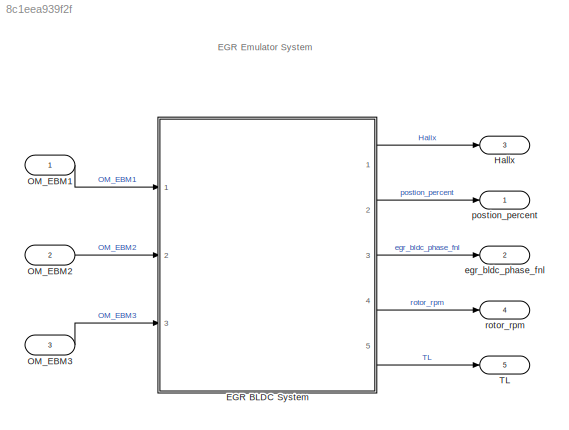
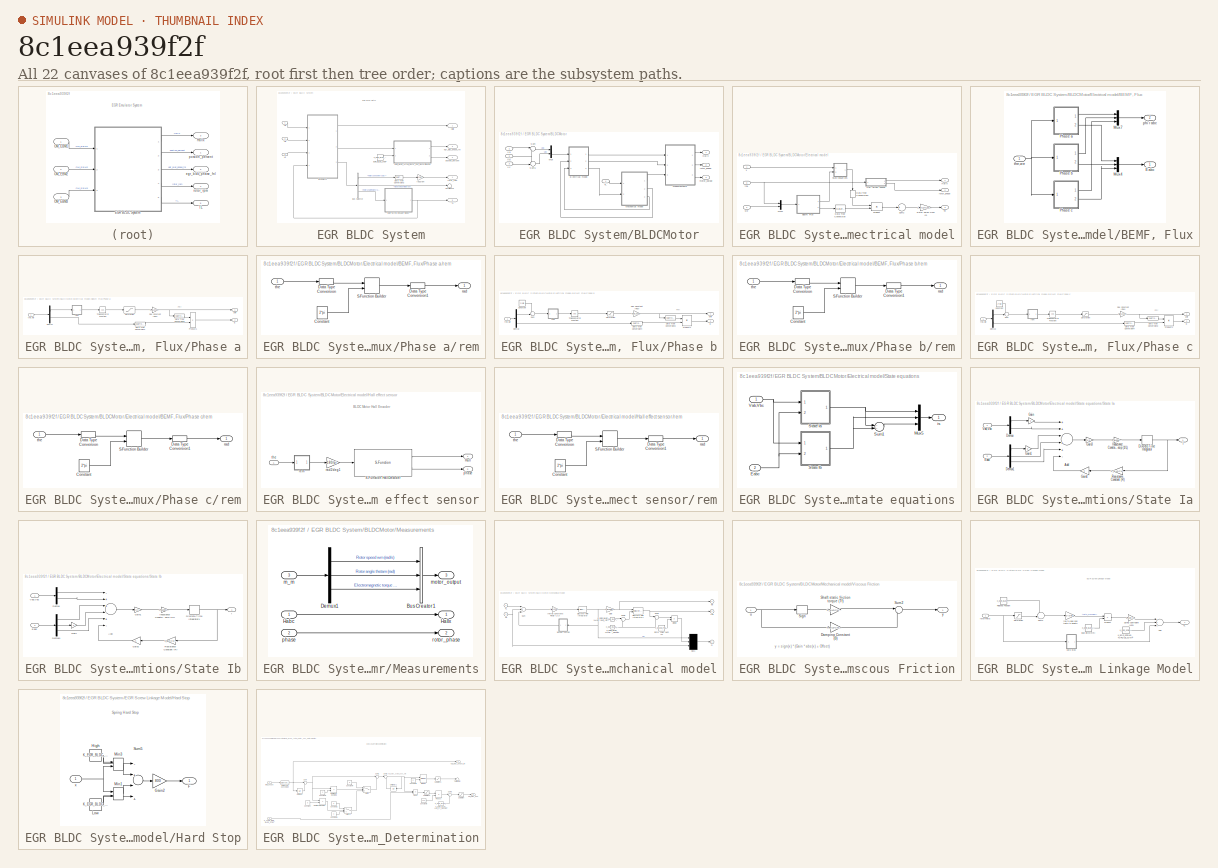
[diagram: thumbnail index - all 22 canvases of the model, root first then tree order]
MODEL slx_8c1eea939f2f
KIND model
BLOCK [SubSystem] EGR BLDC System
  FunctionWithSeparateData = off
  MaskHideContents = off
  MinAlgLoopOccurrences = off
  MinMaxOverflowLogging = MinMaxAndOverflow
  Opaque = off
  Ports = [3, 5]
  PropExecContextOutsideSubsystem = off
  RTWSystemCode = Auto
  RequestExecContextInheritance = off
BLOCK [SubSystem] EGR BLDC System/BLDCMotor
  FunctionWithSeparateData = off
  MaskHideContents = off
  MinAlgLoopOccurrences = off
  Opaque = off
  Ports = [4, 3]
  PropExecContextOutsideSubsystem = off
  RTWSystemCode = Auto
  RequestExecContextInheritance = off
BLOCK [SubSystem] EGR BLDC System/BLDCMotor/Electrical model
  FunctionWithSeparateData = off
  MaskHideContents = off
  MinAlgLoopOccurrences = off
  Opaque = off
  Ports = [3, 3]
  PropExecContextOutsideSubsystem = off
  RTWSystemCode = Auto
  RequestExecContextInheritance = off
BLOCK [SubSystem] EGR BLDC System/BLDCMotor/Electrical model/BEMF, Flux
  FunctionWithSeparateData = off
  MaskHideContents = off
  MinAlgLoopOccurrences = off
  Opaque = off
  Ports = [1, 2]
  PropExecContextOutsideSubsystem = off
  RTWSystemCode = Auto
  RequestExecContextInheritance = off
BLOCK [Outport] EGR BLDC System/BLDCMotor/Electrical model/BEMF, Flux/E abc
  IconDisplay = Port number
  OutDataTypeStr = fixdt(1,32,10)
BLOCK [Mux] EGR BLDC System/BLDCMotor/Electrical model/BEMF, Flux/Mux4
  DisplayOption = bar
  Inputs = 3
  Ports = [3, 1]
BLOCK [Mux] EGR BLDC System/BLDCMotor/Electrical model/BEMF, Flux/Mux7
  DisplayOption = bar
  Inputs = 3
  Ports = [3, 1]
BLOCK [SubSystem] EGR BLDC System/BLDCMotor/Electrical model/BEMF, Flux/Phase a
  FunctionWithSeparateData = off
  MaskHideContents = off
  MinAlgLoopOccurrences = off
  Opaque = off
  Ports = [1, 2]
  PropExecContextOutsideSubsystem = off
  RTWSystemCode = Auto
  RequestExecContextInheritance = off
BLOCK [DataTypeConversion] EGR BLDC System/BLDCMotor/Electrical model/BEMF, Flux/Phase a/Data Type Conversion4
  OutDataTypeStr = fixdt(1,32,8)
  OutMax = 1000
  OutMin = -1000
  RndMeth = Floor
  SaturateOnIntegerOverflow = off
BLOCK [DataTypeConversion] EGR BLDC System/BLDCMotor/Electrical model/BEMF, Flux/Phase a/Data Type Conversion5
  OutDataTypeStr = fixdt(1,32,8)
  OutMax = 10
  OutMin = -10
  RndMeth = Floor
  SaturateOnIntegerOverflow = off
BLOCK [Demux] EGR BLDC System/BLDCMotor/Electrical model/BEMF, Flux/Phase a/Demux
  Outputs = 2
  Ports = [1, 2]
BLOCK [Outport] EGR BLDC System/BLDCMotor/Electrical model/BEMF, Flux/Phase a/E
  IconDisplay = Port number
  OutDataTypeStr = fixdt(1,32,10)
  Port = 2
BLOCK [Gain] EGR BLDC System/BLDCMotor/Electrical model/BEMF, Flux/Phase a/Flux Constant (Flux)
  Gain = K_BLDCM_FLUX
  OutDataTypeStr = fixdt(1,32,10)
  ParamDataTypeStr = fixdt(1,32,10)
  SaturateOnIntegerOverflow = off
BLOCK [Product] EGR BLDC System/BLDCMotor/Electrical model/BEMF, Flux/Phase a/Product1
  InputSameDT = off
  OutDataTypeStr = fixdt(1,32,10)
  Ports = [2, 1]
  RndMeth = Floor
  SaturateOnIntegerOverflow = off
BLOCK [Saturate] EGR BLDC System/BLDCMotor/Electrical model/BEMF, Flux/Phase a/Saturation
  InputPortMap = u0
  OutDataTypeStr = fixdt(1,32,10)
  OutMax = 1
  OutMin = -1
  Ports = [1, 1]
BLOCK [Trigonometry] EGR BLDC System/BLDCMotor/Electrical model/BEMF, Flux/Phase a/Trigonometric Function
  ApproximationMethod = CORDIC
  Operator = cos
  Ports = [1, 1]
BLOCK [Outport] EGR BLDC System/BLDCMotor/Electrical model/BEMF, Flux/Phase a/phi'r
  IconDisplay = Port number
  OutDataTypeStr = fixdt(1,32,10)
BLOCK [SubSystem] EGR BLDC System/BLDCMotor/Electrical model/BEMF, Flux/Phase a/rem
  FunctionWithSeparateData = off
  MaskHideContents = off
  MinAlgLoopOccurrences = off
  Opaque = off
  Ports = [1, 1]
  PropExecContextOutsideSubsystem = off
  RTWSystemCode = Auto
  RequestExecContextInheritance = off
  TreatAsAtomicUnit = on
BLOCK [Constant] EGR BLDC System/BLDCMotor/Electrical model/BEMF, Flux/Phase a/rem/Constant
  OutDataTypeStr = double
  Value = 2*pi
BLOCK [DataTypeConversion] EGR BLDC System/BLDCMotor/Electrical model/BEMF, Flux/Phase a/rem/Data Type Conversion
  OutDataTypeStr = double
  RndMeth = Floor
  SaturateOnIntegerOverflow = off
BLOCK [DataTypeConversion] EGR BLDC System/BLDCMotor/Electrical model/BEMF, Flux/Phase a/rem/Data Type Conversion1
  OutDataTypeStr = fixdt(1,32,10)
  OutMax = 2*pi
  OutMin = -2*pi
  RndMeth = Simplest
  SaturateOnIntegerOverflow = off
BLOCK [S-Function] EGR BLDC System/BLDCMotor/Electrical model/BEMF, Flux/Phase a/rem/S-Function Builder
  CopyFcn = set_param(gcbh,'LinkStatus','none')
  EnableBusSupport = off
  FunctionName = remf
  InitFcn = try, set_param(gcb,'FunctionName','remf'), end
  OpenFcn = sfunctionwizard(gcbh)
  Ports = [2, 1]
  PreSaveFcn = try, set_param(gcb,'FunctionName','remf'), end
  SFunctionModules = remf_wrapper
BLOCK [Outport] EGR BLDC System/BLDCMotor/Electrical model/BEMF, Flux/Phase a/rem/rad
  IconDisplay = Port number
BLOCK [Inport] EGR BLDC System/BLDCMotor/Electrical model/BEMF, Flux/Phase a/rem/the
  IconDisplay = Port number
BLOCK [Inport] EGR BLDC System/BLDCMotor/Electrical model/BEMF, Flux/Phase a/the,we
  IconDisplay = Port number
BLOCK [SubSystem] EGR BLDC System/BLDCMotor/Electrical model/BEMF, Flux/Phase b
  FunctionWithSeparateData = off
  MaskHideContents = off
  MinAlgLoopOccurrences = off
  Opaque = off
  Ports = [1, 2]
  PropExecContextOutsideSubsystem = off
  RTWSystemCode = Auto
  RequestExecContextInheritance = off
BLOCK [Constant] EGR BLDC System/BLDCMotor/Electrical model/BEMF, Flux/Phase b/Constant
  OutDataTypeStr = fixdt(1,32,29)
  Value = 2*pi/3
BLOCK [DataTypeConversion] EGR BLDC System/BLDCMotor/Electrical model/BEMF, Flux/Phase b/Data Type Conversion3
  OutDataTypeStr = fixdt(1,32,8)
  OutMax = 10
  OutMin = -10
  RndMeth = Floor
  SaturateOnIntegerOverflow = off
BLOCK [DataTypeConversion] EGR BLDC System/BLDCMotor/Electrical model/BEMF, Flux/Phase b/Data Type Conversion4
  OutDataTypeStr = fixdt(1,32,8)
  OutMax = 1000
  OutMin = -1000
  RndMeth = Floor
  SaturateOnIntegerOverflow = off
BLOCK [Demux] EGR BLDC System/BLDCMotor/Electrical model/BEMF, Flux/Phase b/Demux
  Outputs = 2
  Ports = [1, 2]
BLOCK [Outport] EGR BLDC System/BLDCMotor/Electrical model/BEMF, Flux/Phase b/E
  IconDisplay = Port number
  OutDataTypeStr = fixdt(1,32,10)
  Port = 2
BLOCK [Gain] EGR BLDC System/BLDCMotor/Electrical model/BEMF, Flux/Phase b/Flux Constant (Flux)
  Gain = K_BLDCM_FLUX
  OutDataTypeStr = fixdt(1,32,10)
  ParamDataTypeStr = fixdt(1,32,10)
  SaturateOnIntegerOverflow = off
BLOCK [Product] EGR BLDC System/BLDCMotor/Electrical model/BEMF, Flux/Phase b/Product1
  InputSameDT = off
  OutDataTypeStr = fixdt(1,32,10)
  Ports = [2, 1]
  RndMeth = Floor
  SaturateOnIntegerOverflow = off
BLOCK [Saturate] EGR BLDC System/BLDCMotor/Electrical model/BEMF, Flux/Phase b/Saturation
  InputPortMap = u0
  OutDataTypeStr = fixdt(1,32,10)
  OutMax = 1
  OutMin = -1
  Ports = [1, 1]
BLOCK [Sum] EGR BLDC System/BLDCMotor/Electrical model/BEMF, Flux/Phase b/Sum
  IconShape = round
  InputSameDT = off
  Inputs = -+|
  OutDataTypeStr = fixdt(1,32,10)
  Ports = [2, 1]
  SaturateOnIntegerOverflow = off
BLOCK [Trigonometry] EGR BLDC System/BLDCMotor/Electrical model/BEMF, Flux/Phase b/Trigonometric Function
  ApproximationMethod = CORDIC
  Operator = cos
  Ports = [1, 1]
BLOCK [Outport] EGR BLDC System/BLDCMotor/Electrical model/BEMF, Flux/Phase b/phi'r
  IconDisplay = Port number
  OutDataTypeStr = fixdt(1,32,10)
BLOCK [SubSystem] EGR BLDC System/BLDCMotor/Electrical model/BEMF, Flux/Phase b/rem
  FunctionWithSeparateData = off
  MaskHideContents = off
  MinAlgLoopOccurrences = off
  Opaque = off
  Ports = [1, 1]
  PropExecContextOutsideSubsystem = off
  RTWSystemCode = Auto
  RequestExecContextInheritance = off
  TreatAsAtomicUnit = on
BLOCK [Constant] EGR BLDC System/BLDCMotor/Electrical model/BEMF, Flux/Phase b/rem/Constant
  OutDataTypeStr = double
  Value = 2*pi
BLOCK [DataTypeConversion] EGR BLDC System/BLDCMotor/Electrical model/BEMF, Flux/Phase b/rem/Data Type Conversion
  OutDataTypeStr = double
  RndMeth = Floor
  SaturateOnIntegerOverflow = off
BLOCK [DataTypeConversion] EGR BLDC System/BLDCMotor/Electrical model/BEMF, Flux/Phase b/rem/Data Type Conversion1
  OutDataTypeStr = fixdt(1,32,10)
  OutMax = 2*pi
  OutMin = -2*pi
  RndMeth = Simplest
  SaturateOnIntegerOverflow = off
BLOCK [S-Function] EGR BLDC System/BLDCMotor/Electrical model/BEMF, Flux/Phase b/rem/S-Function Builder
  CopyFcn = set_param(gcbh,'LinkStatus','none')
  EnableBusSupport = off
  FunctionName = remf
  InitFcn = try, set_param(gcb,'FunctionName','remf'), end
  OpenFcn = sfunctionwizard(gcbh)
  Ports = [2, 1]
  PreSaveFcn = try, set_param(gcb,'FunctionName','remf'), end
  SFunctionModules = remf_wrapper
BLOCK [Outport] EGR BLDC System/BLDCMotor/Electrical model/BEMF, Flux/Phase b/rem/rad
  IconDisplay = Port number
BLOCK [Inport] EGR BLDC System/BLDCMotor/Electrical model/BEMF, Flux/Phase b/rem/the
  IconDisplay = Port number
BLOCK [Inport] EGR BLDC System/BLDCMotor/Electrical model/BEMF, Flux/Phase b/the,we
  IconDisplay = Port number
BLOCK [SubSystem] EGR BLDC System/BLDCMotor/Electrical model/BEMF, Flux/Phase c
  FunctionWithSeparateData = off
  MaskHideContents = off
  MinAlgLoopOccurrences = off
  Opaque = off
  Ports = [1, 2]
  PropExecContextOutsideSubsystem = off
  RTWSystemCode = Auto
  RequestExecContextInheritance = off
BLOCK [Constant] EGR BLDC System/BLDCMotor/Electrical model/BEMF, Flux/Phase c/Constant
  OutDataTypeStr = fixdt(1,32,29)
  Value = 2*pi/3
BLOCK [DataTypeConversion] EGR BLDC System/BLDCMotor/Electrical model/BEMF, Flux/Phase c/Data Type Conversion3
  OutDataTypeStr = fixdt(1,32,8)
  OutMax = 10
  OutMin = -10
  RndMeth = Floor
  SaturateOnIntegerOverflow = off
BLOCK [DataTypeConversion] EGR BLDC System/BLDCMotor/Electrical model/BEMF, Flux/Phase c/Data Type Conversion4
  OutDataTypeStr = fixdt(1,32,8)
  OutMax = 1000
  OutMin = -1000
  RndMeth = Floor
  SaturateOnIntegerOverflow = off
BLOCK [Demux] EGR BLDC System/BLDCMotor/Electrical model/BEMF, Flux/Phase c/Demux
  Outputs = 2
  Ports = [1, 2]
BLOCK [Outport] EGR BLDC System/BLDCMotor/Electrical model/BEMF, Flux/Phase c/E
  IconDisplay = Port number
  OutDataTypeStr = fixdt(1,32,10)
  Port = 2
BLOCK [Gain] EGR BLDC System/BLDCMotor/Electrical model/BEMF, Flux/Phase c/Flux Constant (Flux)
  Gain = K_BLDCM_FLUX
  OutDataTypeStr = fixdt(1,32,10)
  ParamDataTypeStr = fixdt(1,32,10)
  SaturateOnIntegerOverflow = off
BLOCK [Product] EGR BLDC System/BLDCMotor/Electrical model/BEMF, Flux/Phase c/Product1
  InputSameDT = off
  OutDataTypeStr = fixdt(1,32,10)
  Ports = [2, 1]
  RndMeth = Floor
  SaturateOnIntegerOverflow = off
BLOCK [Saturate] EGR BLDC System/BLDCMotor/Electrical model/BEMF, Flux/Phase c/Saturation
  InputPortMap = u0
  OutDataTypeStr = fixdt(1,32,10)
  OutMax = 1
  OutMin = -1
  Ports = [1, 1]
BLOCK [Sum] EGR BLDC System/BLDCMotor/Electrical model/BEMF, Flux/Phase c/Sum
  IconShape = round
  InputSameDT = off
  Inputs = ++|
  OutDataTypeStr = fixdt(1,32,10)
  Ports = [2, 1]
  SaturateOnIntegerOverflow = off
BLOCK [Trigonometry] EGR BLDC System/BLDCMotor/Electrical model/BEMF, Flux/Phase c/Trigonometric Function
  ApproximationMethod = CORDIC
  Operator = cos
  Ports = [1, 1]
BLOCK [Outport] EGR BLDC System/BLDCMotor/Electrical model/BEMF, Flux/Phase c/phi'r
  IconDisplay = Port number
  OutDataTypeStr = fixdt(1,32,10)
BLOCK [SubSystem] EGR BLDC System/BLDCMotor/Electrical model/BEMF, Flux/Phase c/rem
  FunctionWithSeparateData = off
  MaskHideContents = off
  MinAlgLoopOccurrences = off
  Opaque = off
  Ports = [1, 1]
  PropExecContextOutsideSubsystem = off
  RTWSystemCode = Auto
  RequestExecContextInheritance = off
  TreatAsAtomicUnit = on
BLOCK [Constant] EGR BLDC System/BLDCMotor/Electrical model/BEMF, Flux/Phase c/rem/Constant
  OutDataTypeStr = double
  Value = 2*pi
BLOCK [DataTypeConversion] EGR BLDC System/BLDCMotor/Electrical model/BEMF, Flux/Phase c/rem/Data Type Conversion
  OutDataTypeStr = double
  RndMeth = Floor
  SaturateOnIntegerOverflow = off
BLOCK [DataTypeConversion] EGR BLDC System/BLDCMotor/Electrical model/BEMF, Flux/Phase c/rem/Data Type Conversion1
  OutDataTypeStr = fixdt(1,32,10)
  OutMax = 2*pi
  OutMin = -2*pi
  RndMeth = Simplest
  SaturateOnIntegerOverflow = off
BLOCK [S-Function] EGR BLDC System/BLDCMotor/Electrical model/BEMF, Flux/Phase c/rem/S-Function Builder
  CopyFcn = set_param(gcbh,'LinkStatus','none')
  EnableBusSupport = off
  FunctionName = remf
  InitFcn = try, set_param(gcb,'FunctionName','remf'), end
  OpenFcn = sfunctionwizard(gcbh)
  Ports = [2, 1]
  PreSaveFcn = try, set_param(gcb,'FunctionName','remf'), end
  SFunctionModules = remf_wrapper
BLOCK [Outport] EGR BLDC System/BLDCMotor/Electrical model/BEMF, Flux/Phase c/rem/rad
  IconDisplay = Port number
BLOCK [Inport] EGR BLDC System/BLDCMotor/Electrical model/BEMF, Flux/Phase c/rem/the
  IconDisplay = Port number
BLOCK [Inport] EGR BLDC System/BLDCMotor/Electrical model/BEMF, Flux/Phase c/the,we
  IconDisplay = Port number
BLOCK [Outport] EGR BLDC System/BLDCMotor/Electrical model/BEMF, Flux/phi'r abc
  IconDisplay = Port number
  OutDataTypeStr = fixdt(1,32,10)
  Port = 2
BLOCK [Inport] EGR BLDC System/BLDCMotor/Electrical model/BEMF, Flux/the,we
  IconDisplay = Port number
BLOCK [DataTypeConversion] EGR BLDC System/BLDCMotor/Electrical model/Data Type Conversion
  OutDataTypeStr = fixdt(1,32,5)
  RndMeth = Simplest
  SaturateOnIntegerOverflow = off
BLOCK [DataTypeConversion] EGR BLDC System/BLDCMotor/Electrical model/Data Type Conversion1
  OutDataTypeStr = fixdt(1,32,5)
  RndMeth = Simplest
  SaturateOnIntegerOverflow = off
BLOCK [SubSystem] EGR BLDC System/BLDCMotor/Electrical model/Hall effect sensor
  FunctionWithSeparateData = off
  MaskHideContents = off
  MinAlgLoopOccurrences = off
  Opaque = off
  Ports = [1, 2]
  PropExecContextOutsideSubsystem = off
  RTWSystemCode = Auto
  RequestExecContextInheritance = off
BLOCK [Outport] EGR BLDC System/BLDCMotor/Electrical model/Hall effect sensor/Hall
  IconDisplay = Port number
  OutDataTypeStr = boolean
BLOCK [S-Function] EGR BLDC System/BLDCMotor/Electrical model/Hall effect sensor/S-Function HallDecoder
  CopyFcn = set_param(gcbh,'LinkStatus','none')
  EnableBusSupport = off
  FunctionName = HallEncoder
  InitFcn = try, set_param(gcb,'FunctionName','HallEncoder'), end
  OpenFcn = sfunctionwizard(gcbh)
  Ports = [1, 2]
  PreSaveFcn = try, set_param(gcb,'FunctionName','HallEncoder'), end
  SFunctionModules = HallEncoder_wrapper
BLOCK [Outport] EGR BLDC System/BLDCMotor/Electrical model/Hall effect sensor/phase
  IconDisplay = Port number
  OutDataTypeStr = int8
  Port = 2
BLOCK [Gain] EGR BLDC System/BLDCMotor/Electrical model/Hall effect sensor/rad2deg1
  Gain = 180/pi
  OutDataTypeStr = double
  OutMax = 360
  OutMin = -360
  ParamDataTypeStr = Inherit: Inherit via internal rule
  RndMeth = Simplest
  SaturateOnIntegerOverflow = off
BLOCK [SubSystem] EGR BLDC System/BLDCMotor/Electrical model/Hall effect sensor/rem
  FunctionWithSeparateData = off
  MaskHideContents = off
  MinAlgLoopOccurrences = off
  Opaque = off
  Ports = [1, 1]
  PropExecContextOutsideSubsystem = off
  RTWSystemCode = Auto
  RequestExecContextInheritance = off
  TreatAsAtomicUnit = on
BLOCK [Constant] EGR BLDC System/BLDCMotor/Electrical model/Hall effect sensor/rem/Constant
  OutDataTypeStr = double
  Value = 2*pi
BLOCK [DataTypeConversion] EGR BLDC System/BLDCMotor/Electrical model/Hall effect sensor/rem/Data Type Conversion
  OutDataTypeStr = double
  RndMeth = Floor
  SaturateOnIntegerOverflow = off
BLOCK [DataTypeConversion] EGR BLDC System/BLDCMotor/Electrical model/Hall effect sensor/rem/Data Type Conversion1
  OutDataTypeStr = fixdt(1,32,10)
  OutMax = 2*pi
  OutMin = -2*pi
  RndMeth = Simplest
  SaturateOnIntegerOverflow = off
BLOCK [S-Function] EGR BLDC System/BLDCMotor/Electrical model/Hall effect sensor/rem/S-Function Builder
  CopyFcn = set_param(gcbh,'LinkStatus','none')
  EnableBusSupport = off
  FunctionName = remf
  InitFcn = try, set_param(gcb,'FunctionName','remf'), end
  OpenFcn = sfunctionwizard(gcbh)
  Ports = [2, 1]
  PreSaveFcn = try, set_param(gcb,'FunctionName','remf'), end
  SFunctionModules = remf_wrapper
BLOCK [Outport] EGR BLDC System/BLDCMotor/Electrical model/Hall effect sensor/rem/rad
  IconDisplay = Port number
BLOCK [Inport] EGR BLDC System/BLDCMotor/Electrical model/Hall effect sensor/rem/the
  IconDisplay = Port number
BLOCK [Inport] EGR BLDC System/BLDCMotor/Electrical model/Hall effect sensor/the
  IconDisplay = Port number
BLOCK [Outport] EGR BLDC System/BLDCMotor/Electrical model/Hallx
  IconDisplay = Port number
  InitialOutput = 0
  OutDataTypeStr = boolean
BLOCK [Mux] EGR BLDC System/BLDCMotor/Electrical model/Mux1
  DisplayOption = bar
  Inputs = 2
  Ports = [2, 1]
BLOCK [Product] EGR BLDC System/BLDCMotor/Electrical model/Product
  InputSameDT = off
  OutDataTypeStr = fixdt(1,32,10)
  Ports = [2, 1]
  RndMeth = Floor
  SaturateOnIntegerOverflow = off
BLOCK [Gain] EGR BLDC System/BLDCMotor/Electrical model/Rotor Poles Num (p)
  Gain = C_BLDCM_POLE_NUM
  OutDataTypeStr = fixdt(1,32,10)
  ParamDataTypeStr = int8
  SaturateOnIntegerOverflow = off
BLOCK [SubSystem] EGR BLDC System/BLDCMotor/Electrical model/State equations
  FunctionWithSeparateData = off
  MaskHideContents = off
  MinAlgLoopOccurrences = off
  Opaque = off
  Ports = [2, 1]
  PropExecContextOutsideSubsystem = off
  RTWSystemCode = Auto
  RequestExecContextInheritance = off
BLOCK [Inport] EGR BLDC System/BLDCMotor/Electrical model/State equations/Eabc
  IconDisplay = Port number
  OutDataTypeStr = fixdt(1,32,10)
  Port = 2
BLOCK [Mux] EGR BLDC System/BLDCMotor/Electrical model/State equations/Mux5
  DisplayOption = bar
  Inputs = 3
  Ports = [3, 1]
BLOCK [SubSystem] EGR BLDC System/BLDCMotor/Electrical model/State equations/State Ia
  FunctionWithSeparateData = off
  MaskHideContents = off
  MinAlgLoopOccurrences = off
  Opaque = off
  Ports = [2, 1]
  PropExecContextOutsideSubsystem = off
  RTWSystemCode = Auto
  RequestExecContextInheritance = off
BLOCK [Sum] EGR BLDC System/BLDCMotor/Electrical model/State equations/State Ia/Add
  InputSameDT = off
  Inputs = ++-++-
  OutDataTypeStr = fixdt(1,32,10)
  Ports = [6, 1]
  SaturateOnIntegerOverflow = off
BLOCK [Demux] EGR BLDC System/BLDCMotor/Electrical model/State equations/State Ia/Demux
  DisplayOption = bar
  Outputs = 2
  Ports = [1, 2]
BLOCK [Demux] EGR BLDC System/BLDCMotor/Electrical model/State equations/State Ia/Demux1
  DisplayOption = bar
  Outputs = 3
  Ports = [1, 3]
BLOCK [DiscreteIntegrator] EGR BLDC System/BLDCMotor/Electrical model/State equations/State Ia/Discrete-Time Integrator
  ICPrevOutput = DiscIntNeverNeededParam
  ICPrevScaledInput = DiscIntNeverNeededParam
  OutDataTypeStr = fixdt(1,32,10)
  Ports = [1, 1]
  SampleTime = Ts
BLOCK [Inport] EGR BLDC System/BLDCMotor/Electrical model/State equations/State Ia/Eabc
  IconDisplay = Port number
  OutDataTypeStr = fixdt(1,32,10)
  Port = 2
BLOCK [Gain] EGR BLDC System/BLDCMotor/Electrical model/State equations/State Ia/Gain
  Gain = 2
  OutDataTypeStr = fixdt(1,32,10)
  ParamDataTypeStr = Inherit: Inherit via internal rule
  SaturateOnIntegerOverflow = off
BLOCK [Gain] EGR BLDC System/BLDCMotor/Electrical model/State equations/State Ia/Gain1
  Gain = 2
  OutDataTypeStr = fixdt(1,32,10)
  ParamDataTypeStr = Inherit: Inherit via internal rule
  SaturateOnIntegerOverflow = off
BLOCK [Gain] EGR BLDC System/BLDCMotor/Electrical model/State equations/State Ia/Gain3
  Gain = 1/3
  OutDataTypeStr = fixdt(1,32,10)
  ParamDataTypeStr = fixdt(1,32,10)
  SaturateOnIntegerOverflow = off
BLOCK [Gain] EGR BLDC System/BLDCMotor/Electrical model/State equations/State Ia/Gain4
  Gain = 3
  OutDataTypeStr = fixdt(1,32,10)
  SaturateOnIntegerOverflow = off
BLOCK [Gain] EGR BLDC System/BLDCMotor/Electrical model/State equations/State Ia/Inductance Constant's Recip (1//L)
  Gain = K_BLDCM_INDUCTANCE
  OutDataTypeStr = fixdt(1,32,10)
  ParamDataTypeStr = fixdt(1,32,10)
  SaturateOnIntegerOverflow = off
BLOCK [Gain] EGR BLDC System/BLDCMotor/Electrical model/State equations/State Ia/Resistance Constant (R)
  Gain = K_BLDCM_RESISTANCE
  OutDataTypeStr = fixdt(1,32,10)
  ParamDataTypeStr = fixdt(1,32,10)
  SaturateOnIntegerOverflow = off
BLOCK [Inport] EGR BLDC System/BLDCMotor/Electrical model/State equations/State Ia/Vab,Vbc
  IconDisplay = Port number
  OutDataTypeStr = fixdt(1,32,10)
BLOCK [Outport] EGR BLDC System/BLDCMotor/Electrical model/State equations/State Ia/i
  IconDisplay = Port number
  OutDataTypeStr = fixdt(1,32,10)
BLOCK [SubSystem] EGR BLDC System/BLDCMotor/Electrical model/State equations/State Ib
  FunctionWithSeparateData = off
  MaskHideContents = off
  MinAlgLoopOccurrences = off
  Opaque = off
  Ports = [2, 1]
  PropExecContextOutsideSubsystem = off
  RTWSystemCode = Auto
  RequestExecContextInheritance = off
BLOCK [Sum] EGR BLDC System/BLDCMotor/Electrical model/State equations/State Ib/Add
  InputSameDT = off
  Inputs = -++-+-
  OutDataTypeStr = fixdt(1,32,10)
  Ports = [6, 1]
  SaturateOnIntegerOverflow = off
BLOCK [Demux] EGR BLDC System/BLDCMotor/Electrical model/State equations/State Ib/Demux
  DisplayOption = bar
  Outputs = 2
  Ports = [1, 2]
BLOCK [Demux] EGR BLDC System/BLDCMotor/Electrical model/State equations/State Ib/Demux1
  DisplayOption = bar
  Outputs = 3
  Ports = [1, 3]
BLOCK [DiscreteIntegrator] EGR BLDC System/BLDCMotor/Electrical model/State equations/State Ib/Discrete-Time Integrator1
  ICPrevOutput = DiscIntNeverNeededParam
  ICPrevScaledInput = DiscIntNeverNeededParam
  OutDataTypeStr = fixdt(1,32,10)
  Ports = [1, 1]
  SampleTime = Ts
BLOCK [Inport] EGR BLDC System/BLDCMotor/Electrical model/State equations/State Ib/Eabc
  IconDisplay = Port number
  OutDataTypeStr = fixdt(1,32,10)
  Port = 2
BLOCK [Gain] EGR BLDC System/BLDCMotor/Electrical model/State equations/State Ib/Gain
  Gain = 2
  OutDataTypeStr = fixdt(1,32,10)
  ParamDataTypeStr = Inherit: Inherit via internal rule
  SaturateOnIntegerOverflow = off
BLOCK [Gain] EGR BLDC System/BLDCMotor/Electrical model/State equations/State Ib/Gain1
  Gain = 1/3
  OutDataTypeStr = fixdt(1,32,10)
  ParamDataTypeStr = fixdt(1,32,10)
  SaturateOnIntegerOverflow = off
BLOCK [Gain] EGR BLDC System/BLDCMotor/Electrical model/State equations/State Ib/Gain2
  Gain = 3
  OutDataTypeStr = fixdt(1,32,10)
  ParamDataTypeStr = int8
  SaturateOnIntegerOverflow = off
BLOCK [Gain] EGR BLDC System/BLDCMotor/Electrical model/State equations/State Ib/Inductance Constant's Recip (1//L)
  Gain = K_BLDCM_INDUCTANCE
  OutDataTypeStr = fixdt(1,32,10)
  ParamDataTypeStr = fixdt(1,32,10)
  SaturateOnIntegerOverflow = off
BLOCK [Gain] EGR BLDC System/BLDCMotor/Electrical model/State equations/State Ib/Resistance Constant (R)
  Gain = K_BLDCM_RESISTANCE
  OutDataTypeStr = fixdt(1,32,10)
  ParamDataTypeStr = fixdt(1,32,10)
  SaturateOnIntegerOverflow = off
BLOCK [Inport] EGR BLDC System/BLDCMotor/Electrical model/State equations/State Ib/Vab,Vbc
  IconDisplay = Port number
BLOCK [Outport] EGR BLDC System/BLDCMotor/Electrical model/State equations/State Ib/i
  IconDisplay = Port number
  OutDataTypeStr = fixdt(1,32,10)
BLOCK [Sum] EGR BLDC System/BLDCMotor/Electrical model/State equations/Sum1
  InputSameDT = off
  Inputs = --
  OutDataTypeStr = fixdt(1,32,10)
  Ports = [2, 1]
BLOCK [Inport] EGR BLDC System/BLDCMotor/Electrical model/State equations/Vab,Vbc
  IconDisplay = Port number
BLOCK [Outport] EGR BLDC System/BLDCMotor/Electrical model/State equations/is
  IconDisplay = Port number
  OutDataTypeStr = fixdt(1,32,10)
BLOCK [Sum] EGR BLDC System/BLDCMotor/Electrical model/Sum2
  IconShape = round
  InputSameDT = off
  Inputs = +
  OutDataTypeStr = fixdt(1,32,10)
  Ports = [1, 1]
BLOCK [Outport] EGR BLDC System/BLDCMotor/Electrical model/Te
  IconDisplay = Port number
  InitialOutput = 0
  OutDataTypeStr = fixdt(1,32,10)
  Port = 3
BLOCK [Outport] EGR BLDC System/BLDCMotor/Electrical model/rotor_phase
  IconDisplay = Port number
  InitialOutput = 0
  Port = 2
BLOCK [Inport] EGR BLDC System/BLDCMotor/Electrical model/the
  IconDisplay = Port number
  Port = 3
BLOCK [Inport] EGR BLDC System/BLDCMotor/Electrical model/v
  IconDisplay = Port number
BLOCK [Inport] EGR BLDC System/BLDCMotor/Electrical model/we
  IconDisplay = Port number
  Port = 2
BLOCK [Outport] EGR BLDC System/BLDCMotor/Hallx
  IconDisplay = Port number
BLOCK [SubSystem] EGR BLDC System/BLDCMotor/Measurements
  FunctionWithSeparateData = off
  MaskHideContents = off
  MinAlgLoopOccurrences = off
  Opaque = off
  Ports = [3, 3]
  PropExecContextOutsideSubsystem = off
  RTWSystemCode = Auto
  RequestExecContextInheritance = off
BLOCK [BusCreator] EGR BLDC System/BLDCMotor/Measurements/Bus Creator1
  DisplayOption = bar
  Inputs = 3
  Ports = [3, 1]
BLOCK [Demux] EGR BLDC System/BLDCMotor/Measurements/Demux1
  DisplayOption = bar
  Outputs = [1,1,1]
  Ports = [1, 3]
BLOCK [Inport] EGR BLDC System/BLDCMotor/Measurements/Habc
  IconDisplay = Port number
  OutDataTypeStr = boolean
BLOCK [Outport] EGR BLDC System/BLDCMotor/Measurements/Hallx
  IconDisplay = Port number
BLOCK [Inport] EGR BLDC System/BLDCMotor/Measurements/m_m
  IconDisplay = Port number
  OutDataTypeStr = fixdt(1,32,10)
  Port = 3
BLOCK [Outport] EGR BLDC System/BLDCMotor/Measurements/motor_output
  IconDisplay = Port number
  Port = 3
BLOCK [Inport] EGR BLDC System/BLDCMotor/Measurements/phase
  IconDisplay = Port number
  OutDataTypeStr = int8
  Port = 2
BLOCK [Outport] EGR BLDC System/BLDCMotor/Measurements/rotor_phase
  IconDisplay = Port number
  Port = 2
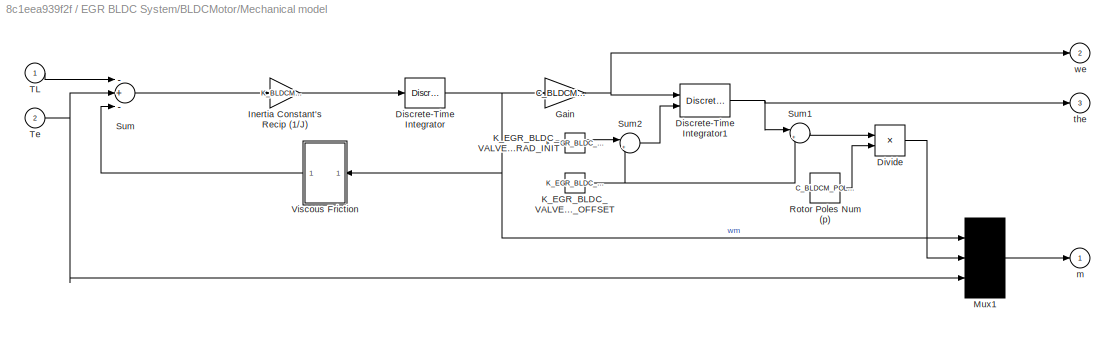
BLOCK [SubSystem] EGR BLDC System/BLDCMotor/Mechanical model
  FunctionWithSeparateData = off
  MaskHideContents = off
  MinAlgLoopOccurrences = off
  Opaque = off
  Ports = [2, 3]
  PropExecContextOutsideSubsystem = off
  RTWSystemCode = Auto
  RequestExecContextInheritance = off
BLOCK [DiscreteIntegrator] EGR BLDC System/BLDCMotor/Mechanical model/Discrete-Time Integrator
  ICPrevOutput = DiscIntNeverNeededParam
  ICPrevScaledInput = DiscIntNeverNeededParam
  InitialCondition = C_BLDCM_ROTOR_RAD_INIT
  OutDataTypeStr = fixdt(1,32,10)
  Ports = [1, 1]
  SampleTime = Ts
BLOCK [DiscreteIntegrator] EGR BLDC System/BLDCMotor/Mechanical model/Discrete-Time Integrator1
  ICPrevOutput = DiscIntNeverNeededParam
  ICPrevScaledInput = DiscIntNeverNeededParam
  InitialConditionSource = external
  OutDataTypeStr = fixdt(1,32,10)
  Ports = [2, 1]
  SampleTime = Ts
BLOCK [Product] EGR BLDC System/BLDCMotor/Mechanical model/Divide
  InputSameDT = off
  Inputs = */
  OutDataTypeStr = fixdt(1,32,10)
  Ports = [2, 1]
  RndMeth = Simplest
  SaturateOnIntegerOverflow = off
BLOCK [Gain] EGR BLDC System/BLDCMotor/Mechanical model/Gain
  Gain = C_BLDCM_POLE_NUM
  OutDataTypeStr = fixdt(1,32,10)
  ParamDataTypeStr = int8
  ParamMax = 10
  ParamMin = 0
  SaturateOnIntegerOverflow = off
BLOCK [Gain] EGR BLDC System/BLDCMotor/Mechanical model/Inertia Constant's Recip (1//J)
  Gain = K_BLDCM_INERTIA
  OutDataTypeStr = fixdt(1,32,10)
  ParamDataTypeStr = fixdt(1,32,10)
  SaturateOnIntegerOverflow = off
BLOCK [Constant] EGR BLDC System/BLDCMotor/Mechanical model/K_EGR_BLDC_VALVE_POS_RAD_INIT
  OutDataTypeStr = fixdt(1,32,10)
  Value = K_EGR_BLDC_VALVE_POS_RAD_INIT
BLOCK [Constant] EGR BLDC System/BLDCMotor/Mechanical model/K_EGR_BLDC_VALVE_POS_RAD_OFFSET
  OutDataTypeStr = fixdt(1,32,10)
  Value = K_EGR_BLDC_VALVE_POS_RAD_OFFSET
BLOCK [Mux] EGR BLDC System/BLDCMotor/Mechanical model/Mux1
  Inputs = 3
  Ports = [3, 1]
BLOCK [Constant] EGR BLDC System/BLDCMotor/Mechanical model/Rotor Poles Num (p)
  OutDataTypeStr = int8
  Value = C_BLDCM_POLE_NUM
BLOCK [Sum] EGR BLDC System/BLDCMotor/Mechanical model/Sum
  InputSameDT = off
  Inputs = -+-
  OutDataTypeStr = fixdt(1,32,10)
  Ports = [3, 1]
BLOCK [Sum] EGR BLDC System/BLDCMotor/Mechanical model/Sum1
  IconShape = round
  InputSameDT = off
  Inputs = |+-
  OutDataTypeStr = fixdt(1,32,10)
  Ports = [2, 1]
  RndMeth = Simplest
  SaturateOnIntegerOverflow = off
BLOCK [Sum] EGR BLDC System/BLDCMotor/Mechanical model/Sum2
  IconShape = round
  InputSameDT = off
  Inputs = |++
  OutDataTypeStr = fixdt(1,32,10)
  Ports = [2, 1]
  SaturateOnIntegerOverflow = off
BLOCK [Inport] EGR BLDC System/BLDCMotor/Mechanical model/TL
  IconDisplay = Port number
BLOCK [Inport] EGR BLDC System/BLDCMotor/Mechanical model/Te
  IconDisplay = Port number
  OutDataTypeStr = fixdt(1,32,10)
  Port = 2
BLOCK [SubSystem] EGR BLDC System/BLDCMotor/Mechanical model/Viscous Friction
  FunctionWithSeparateData = off
  MaskHideContents = off
  MinAlgLoopOccurrences = off
  Opaque = off
  Ports = [1, 1]
  PropExecContextOutsideSubsystem = off
  RTWSystemCode = Auto
  RequestExecContextInheritance = off
BLOCK [Gain] EGR BLDC System/BLDCMotor/Mechanical model/Viscous Friction/Damping Constant (B)
  Gain = K_BLDCM_DAMPING_COEFF
  OutDataTypeStr = fixdt(1,32,10)
  ParamDataTypeStr = fixdt(1,32,10)
  SaturateOnIntegerOverflow = off
BLOCK [Gain] EGR BLDC System/BLDCMotor/Mechanical model/Viscous Friction/Shaft static friction torque (Tf)
  Gain = K_BLDCM_TF
  OutDataTypeStr = fixdt(1,32,10)
  ParamDataTypeStr = fixdt(1,32,10)
  SaturateOnIntegerOverflow = off
BLOCK [Signum] EGR BLDC System/BLDCMotor/Mechanical model/Viscous Friction/Sign
  DisableCoverage = on
BLOCK [Sum] EGR BLDC System/BLDCMotor/Mechanical model/Viscous Friction/Sum2
  IconShape = round
  Inputs = |++
  Ports = [2, 1]
BLOCK [Inport] EGR BLDC System/BLDCMotor/Mechanical model/Viscous Friction/u
  IconDisplay = Port number
BLOCK [Outport] EGR BLDC System/BLDCMotor/Mechanical model/Viscous Friction/y
  IconDisplay = Port number
BLOCK [Outport] EGR BLDC System/BLDCMotor/Mechanical model/m
  IconDisplay = Port number
  InitialOutput = 0
  OutDataTypeStr = fixdt(1,32,10)
BLOCK [Outport] EGR BLDC System/BLDCMotor/Mechanical model/the
  IconDisplay = Port number
  InitialOutput = 0
  Port = 3
BLOCK [Outport] EGR BLDC System/BLDCMotor/Mechanical model/we
  IconDisplay = Port number
  InitialOutput = 0
  Port = 2
BLOCK [Mux] EGR BLDC System/BLDCMotor/Mux
  DisplayOption = bar
  Inputs = 2
  Ports = [2, 1]
BLOCK [Sum] EGR BLDC System/BLDCMotor/Sum
  IconShape = round
  InputSameDT = off
  Inputs = |+-
  OutDataTypeStr = fixdt(1,32,10)
  Ports = [2, 1]
  SaturateOnIntegerOverflow = off
BLOCK [Sum] EGR BLDC System/BLDCMotor/Sum1
  IconShape = round
  InputSameDT = off
  Inputs = +-|
  OutDataTypeStr = fixdt(1,32,10)
  Ports = [2, 1]
  SaturateOnIntegerOverflow = off
BLOCK [Inport] EGR BLDC System/BLDCMotor/TL
  IconDisplay = Port number
  OutDataTypeStr = fixdt(1,32,10)
  Port = 4
BLOCK [Inport] EGR BLDC System/BLDCMotor/Va
  IconDisplay = Port number
  OutDataTypeStr = fixdt(1,32,10)
BLOCK [Inport] EGR BLDC System/BLDCMotor/Vb
  IconDisplay = Port number
  OutDataTypeStr = fixdt(1,32,10)
  Port = 2
BLOCK [Inport] EGR BLDC System/BLDCMotor/Vc
  IconDisplay = Port number
  OutDataTypeStr = fixdt(1,32,10)
  Port = 3
BLOCK [Outport] EGR BLDC System/BLDCMotor/motor_output
  IconDisplay = Port number
  Port = 3
BLOCK [Outport] EGR BLDC System/BLDCMotor/rotor_phase
  IconDisplay = Port number
  Port = 2
BLOCK [BusSelector] EGR BLDC System/Bus Selector
  OutputSignals = Rotor speed wm (rad/s),Electromagnetic torque Te (N*m),Rotor angle thetam (rad)
  Ports = [1, 3]
BLOCK [DataTypeConversion] EGR BLDC System/Data Type Conversion3
  OutDataTypeStr = fixdt(1,32,6)
  OutMax = 2000
  OutMin = -2000
  RndMeth = Simplest
  SaturateOnIntegerOverflow = off
BLOCK [SubSystem] EGR BLDC System/EGR Screw Linkage Model
  FunctionWithSeparateData = off
  MaskHideContents = off
  MinAlgLoopOccurrences = off
  MinMaxOverflowLogging = MinMaxAndOverflow
  Opaque = off
  Ports = [1, 1]
  PropExecContextOutsideSubsystem = off
  RTWSystemCode = Auto
  RequestExecContextInheritance = off
BLOCK [Sum] EGR BLDC System/EGR Screw Linkage Model/Add
  InputSameDT = off
  Inputs = +++
  OutDataTypeStr = fixdt(1,32,10)
  Ports = [3, 1]
  SaturateOnIntegerOverflow = off
BLOCK [SubSystem] EGR BLDC System/EGR Screw Linkage Model/Hard Stop
  FunctionWithSeparateData = off
  MaskHideContents = off
  MinAlgLoopOccurrences = off
  Opaque = off
  Ports = [1, 1]
  PropExecContextOutsideSubsystem = off
  RTWSystemCode = Auto
  RequestExecContextInheritance = off
BLOCK [Outport] EGR BLDC System/EGR Screw Linkage Model/Hard Stop/F
  IconDisplay = Port number
BLOCK [Gain] EGR BLDC System/EGR Screw Linkage Model/Hard Stop/Gain2
  Gain = 800
  OutDataTypeStr = fixdt(1,32,10)
  SaturateOnIntegerOverflow = off
BLOCK [Constant] EGR BLDC System/EGR Screw Linkage Model/Hard Stop/High
  OutDataTypeStr = fixdt(1,32,10)
  Value = K_EGR_BLDC_VALVE_HS_RAD_HIGH
BLOCK [Constant] EGR BLDC System/EGR Screw Linkage Model/Hard Stop/Low
  OutDataTypeStr = fixdt(1,32,10)
  Value = K_EGR_BLDC_VALVE_HS_RAD_LOW
BLOCK [MinMax] EGR BLDC System/EGR Screw Linkage Model/Hard Stop/Min1
  InputSameDT = off
  Inputs = 2
  OutDataTypeStr = fixdt(1,32,10)
  Ports = [2, 1]
BLOCK [MinMax] EGR BLDC System/EGR Screw Linkage Model/Hard Stop/Min3
  Function = max
  InputSameDT = off
  Inputs = 2
  OutDataTypeStr = fixdt(1,32,10)
  Ports = [2, 1]
BLOCK [Sum] EGR BLDC System/EGR Screw Linkage Model/Hard Stop/Sum5
  InputSameDT = off
  Inputs = -+||+-
  OutDataTypeStr = fixdt(1,32,10)
  Ports = [4, 1]
BLOCK [Inport] EGR BLDC System/EGR Screw Linkage Model/Hard Stop/x
  IconDisplay = Port number
BLOCK [Constant] EGR BLDC System/EGR Screw Linkage Model/K_EGR_SPRING_TORQUE_COMP
  OutDataTypeStr = fixdt(1,32,10)
  Value = K_EGR_SPRING_TORQUE_COMP
BLOCK [Product] EGR BLDC System/EGR Screw Linkage Model/Product
  InputSameDT = off
  OutDataTypeStr = fixdt(1,16,7)
  Ports = [2, 1]
  RndMeth = Floor
  SaturateOnIntegerOverflow = off
BLOCK [Constant] EGR BLDC System/EGR Screw Linkage Model/Relaxed Position
  OutDataTypeStr = fixdt(1,32,10)
  Value = K_EGR_BLDC_VALVE_STOPPER_RAD
BLOCK [Saturate] EGR BLDC System/EGR Screw Linkage Model/Saturation
  InputPortMap = u0
  LowerLimit = K_EGR_BLDC_VALVE_STOPPER_RAD
  OutDataTypeStr = fixdt(1,32,10)
  Ports = [1, 1]
  UpperLimit = K_EGR_BLDC_VALVE_HS_RAD_HIGH
BLOCK [Gain] EGR BLDC System/EGR Screw Linkage Model/Spring Coefficient (Ksp)
  Gain = K_EGR_SPRING_COEFF
  OutDataTypeStr = fixdt(1,16,7)
  ParamDataTypeStr = fixdt(1,16,10)
  SaturateOnIntegerOverflow = off
BLOCK [Sum] EGR BLDC System/EGR Screw Linkage Model/Sum2
  IconShape = round
  InputSameDT = off
  Inputs = -+|
  OutDataTypeStr = fixdt(1,32,10)
  Ports = [2, 1]
  SaturateOnIntegerOverflow = off
BLOCK [Outport] EGR BLDC System/EGR Screw Linkage Model/TL
  IconDisplay = Port number
BLOCK [Constant] EGR BLDC System/EGR Screw Linkage Model/load pitch(mm)
  OutDataTypeStr = fixdt(1,16,7)
  Value = C_EGR_BLDC_VALVE_SCREW_LOAD_PITCH
BLOCK [Gain] EGR BLDC System/EGR Screw Linkage Model/rad-to-deg and theta to length 
  Gain = 1/(2*pi)
  OutDataTypeStr = fixdt(1,32,10)
  ParamDataTypeStr = fixdt(1,32,10)
  SaturateOnIntegerOverflow = off
BLOCK [Inport] EGR BLDC System/EGR Screw Linkage Model/rotorTheta
  IconDisplay = Port number
  OutDataTypeStr = fixdt(1,32,10)
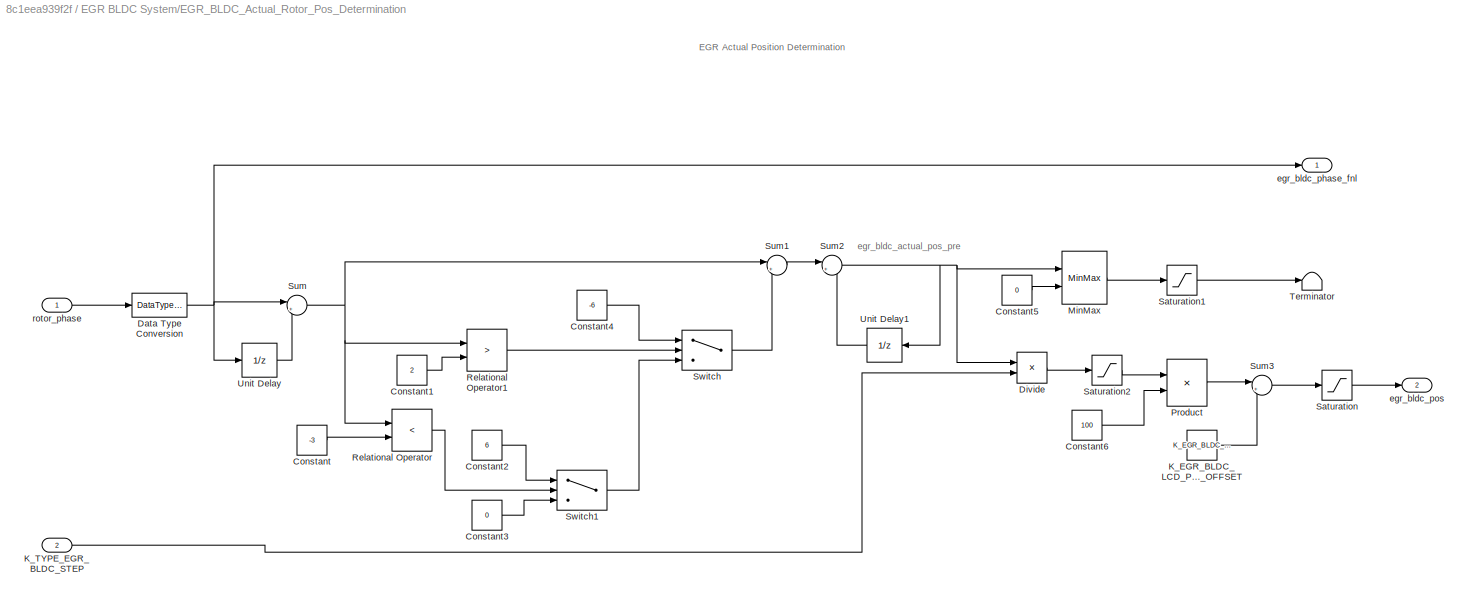
BLOCK [SubSystem] EGR BLDC System/EGR_BLDC_Actual_Rotor_Pos_Determination
  FunctionWithSeparateData = off
  MaskHideContents = off
  MinAlgLoopOccurrences = off
  MinMaxOverflowLogging = MinMaxAndOverflow
  Opaque = off
  Ports = [2, 2]
  PropExecContextOutsideSubsystem = off
  RTWSystemCode = Auto
  RequestExecContextInheritance = off
BLOCK [Constant] EGR BLDC System/EGR_BLDC_Actual_Rotor_Pos_Determination/Constant
  OutDataTypeStr = int8
  Value = -3
BLOCK [Constant] EGR BLDC System/EGR_BLDC_Actual_Rotor_Pos_Determination/Constant1
  OutDataTypeStr = int8
  Value = 2
BLOCK [Constant] EGR BLDC System/EGR_BLDC_Actual_Rotor_Pos_Determination/Constant2
  OutDataTypeStr = int8
  Value = 6
BLOCK [Constant] EGR BLDC System/EGR_BLDC_Actual_Rotor_Pos_Determination/Constant3
  OutDataTypeStr = int8
  Value = 0
BLOCK [Constant] EGR BLDC System/EGR_BLDC_Actual_Rotor_Pos_Determination/Constant4
  OutDataTypeStr = int8
  Value = -6
BLOCK [Constant] EGR BLDC System/EGR_BLDC_Actual_Rotor_Pos_Determination/Constant5
  OutDataTypeStr = uint8
  Value = 0
BLOCK [Constant] EGR BLDC System/EGR_BLDC_Actual_Rotor_Pos_Determination/Constant6
  OutDataTypeStr = uint8
  Value = 100
BLOCK [DataTypeConversion] EGR BLDC System/EGR_BLDC_Actual_Rotor_Pos_Determination/Data Type Conversion
  OutDataTypeStr = int8
  RndMeth = Floor
  SaturateOnIntegerOverflow = off
BLOCK [Product] EGR BLDC System/EGR_BLDC_Actual_Rotor_Pos_Determination/Divide
  InputSameDT = off
  Inputs = */
  OutDataTypeStr = fixdt(1,32,12)
  Ports = [2, 1]
  RndMeth = Simplest
  SaturateOnIntegerOverflow = off
BLOCK [Constant] EGR BLDC System/EGR_BLDC_Actual_Rotor_Pos_Determination/K_EGR_BLDC_LCD_POS_OFFSET
  OutDataTypeStr = fixdt(1,16,7)
  Value = K_EGR_BLDC_LCD_POS_OFFSET
BLOCK [Inport] EGR BLDC System/EGR_BLDC_Actual_Rotor_Pos_Determination/K_TYPE_EGR_BLDC_STEP
  IconDisplay = Port number
  OutDataTypeStr = uint8
  Port = 2
BLOCK [MinMax] EGR BLDC System/EGR_BLDC_Actual_Rotor_Pos_Determination/MinMax
  Function = max
  InputSameDT = off
  Inputs = 2
  OutDataTypeStr = fixdt(1,16,0)
  Ports = [2, 1]
BLOCK [Product] EGR BLDC System/EGR_BLDC_Actual_Rotor_Pos_Determination/Product
  InputSameDT = off
  OutDataTypeStr = fixdt(1,16,7)
  Ports = [2, 1]
  RndMeth = Floor
  SaturateOnIntegerOverflow = off
BLOCK [RelationalOperator] EGR BLDC System/EGR_BLDC_Actual_Rotor_Pos_Determination/Relational Operator
  InputSameDT = off
  Operator = <
  OutDataTypeStr = boolean
  Ports = [2, 1]
BLOCK [RelationalOperator] EGR BLDC System/EGR_BLDC_Actual_Rotor_Pos_Determination/Relational Operator1
  InputSameDT = off
  Operator = >
  OutDataTypeStr = boolean
  Ports = [2, 1]
BLOCK [Saturate] EGR BLDC System/EGR_BLDC_Actual_Rotor_Pos_Determination/Saturation
  InputPortMap = u0
  LowerLimit = -25
  OutDataTypeStr = fixdt(1,16,7)
  Ports = [1, 1]
  UpperLimit = 125
BLOCK [Saturate] EGR BLDC System/EGR_BLDC_Actual_Rotor_Pos_Determination/Saturation1
  InputPortMap = u0
  LowerLimit = -60
  OutDataTypeStr = int8
  Ports = [1, 1]
  UpperLimit = 120
BLOCK [Saturate] EGR BLDC System/EGR_BLDC_Actual_Rotor_Pos_Determination/Saturation2
  InputPortMap = u0
  LowerLimit = -0.25
  OutDataTypeStr = fixdt(1,16,12)
  Ports = [1, 1]
  UpperLimit = 1.25
BLOCK [Sum] EGR BLDC System/EGR_BLDC_Actual_Rotor_Pos_Determination/Sum
  AccumDataTypeStr = int8
  IconShape = round
  InputSameDT = off
  Inputs = |+-
  OutDataTypeStr = int8
  Ports = [2, 1]
  SaturateOnIntegerOverflow = off
BLOCK [Sum] EGR BLDC System/EGR_BLDC_Actual_Rotor_Pos_Determination/Sum1
  AccumDataTypeStr = int8
  IconShape = round
  InputSameDT = off
  Inputs = |++
  OutDataTypeStr = fixdt(1,8,0)
  Ports = [2, 1]
  SaturateOnIntegerOverflow = off
BLOCK [Sum] EGR BLDC System/EGR_BLDC_Actual_Rotor_Pos_Determination/Sum2
  AccumDataTypeStr = fixdt(1,16,0)
  IconShape = round
  InputSameDT = off
  Inputs = |++
  OutDataTypeStr = fixdt(1,16,0)
  Ports = [2, 1]
  SaturateOnIntegerOverflow = off
BLOCK [Sum] EGR BLDC System/EGR_BLDC_Actual_Rotor_Pos_Determination/Sum3
  IconShape = round
  InputSameDT = off
  Inputs = |++
  OutDataTypeStr = fixdt(1,16,7)
  Ports = [2, 1]
  SaturateOnIntegerOverflow = off
BLOCK [Switch] EGR BLDC System/EGR_BLDC_Actual_Rotor_Pos_Determination/Switch
  Criteria = u2 ~= 0
  InputSameDT = off
  OutDataTypeStr = int8
  SaturateOnIntegerOverflow = off
BLOCK [Switch] EGR BLDC System/EGR_BLDC_Actual_Rotor_Pos_Determination/Switch1
  Criteria = u2 ~= 0
  InputSameDT = off
  OutDataTypeStr = int8
  SaturateOnIntegerOverflow = off
BLOCK [Terminator] EGR BLDC System/EGR_BLDC_Actual_Rotor_Pos_Determination/Terminator
BLOCK [UnitDelay] EGR BLDC System/EGR_BLDC_Actual_Rotor_Pos_Determination/Unit Delay
  InputProcessing = Elements as channels (sample based)
  SampleTime = -1
BLOCK [UnitDelay] EGR BLDC System/EGR_BLDC_Actual_Rotor_Pos_Determination/Unit Delay1
  InputProcessing = Elements as channels (sample based)
  SampleTime = -1
BLOCK [Outport] EGR BLDC System/EGR_BLDC_Actual_Rotor_Pos_Determination/egr_bldc_phase_fnl
  IconDisplay = Port number
BLOCK [Outport] EGR BLDC System/EGR_BLDC_Actual_Rotor_Pos_Determination/egr_bldc_pos
  IconDisplay = Port number
  Port = 2
BLOCK [Inport] EGR BLDC System/EGR_BLDC_Actual_Rotor_Pos_Determination/rotor_phase
  IconDisplay = Port number
  OutDataTypeStr = int8
BLOCK [Constant] EGR BLDC System/EGR_BLDC_STEP
  OutDataTypeStr = uint8
  Value = C_EGR_BLDC_STEP
BLOCK [Outport] EGR BLDC System/Hallx
  IconDisplay = Port number
BLOCK [Outport] EGR BLDC System/TL
  IconDisplay = Port number
  Port = 5
BLOCK [Terminator] EGR BLDC System/Terminator
BLOCK [Inport] EGR BLDC System/Ua
  IconDisplay = Port number
  OutDataTypeStr = fixdt(1,32,10)
BLOCK [Inport] EGR BLDC System/Ub
  IconDisplay = Port number
  OutDataTypeStr = fixdt(1,32,10)
  Port = 2
BLOCK [Inport] EGR BLDC System/Uc
  IconDisplay = Port number
  OutDataTypeStr = fixdt(1,32,10)
  Port = 3
BLOCK [Outport] EGR BLDC System/egr_bldc_phase_fnl
  IconDisplay = Port number
  Port = 3
BLOCK [Outport] EGR BLDC System/postion_percent
  IconDisplay = Port number
  Port = 2
BLOCK [Gain] EGR BLDC System/rad2rpm
  Gain = 30/pi
  OutDataTypeStr = fixdt(1,32,10)
  ParamDataTypeStr = fixdt(1,32,10)
  RndMeth = Simplest
  SaturateOnIntegerOverflow = off
BLOCK [Outport] EGR BLDC System/rotor_rpm
  IconDisplay = Port number
  Port = 4
BLOCK [Outport] Hallx
  IconDisplay = Port number
  Port = 3
BLOCK [Inport] OM_EBM1
  IconDisplay = Port number
  OutDataTypeStr = fixdt(1,32,10)
BLOCK [Inport] OM_EBM2
  IconDisplay = Port number
  OutDataTypeStr = fixdt(1,32,10)
  Port = 2
BLOCK [Inport] OM_EBM3
  IconDisplay = Port number
  OutDataTypeStr = fixdt(1,32,10)
  Port = 3
BLOCK [Outport] TL
  IconDisplay = Port number
  Port = 5
BLOCK [Outport] egr_bldc_phase_fnl
  IconDisplay = Port number
  Port = 2
BLOCK [Outport] postion_percent
  IconDisplay = Port number
BLOCK [Outport] rotor_rpm
  IconDisplay = Port number
  Port = 4
ANNOTATION (root): EGR Emulator System
ANNOTATION EGR BLDC System: EGR BLDC Motor
ANNOTATION EGR BLDC System/BLDCMotor/Electrical model/BEMF, Flux/Phase a: Phi' r
ANNOTATION EGR BLDC System/BLDCMotor/Electrical model/BEMF, Flux/Phase b: Phi' r
ANNOTATION EGR BLDC System/BLDCMotor/Electrical model/BEMF, Flux/Phase c: Phi' r
ANNOTATION EGR BLDC System/BLDCMotor/Electrical model/Hall effect sensor: BLDC Motor Hall Encoder
ANNOTATION EGR BLDC System/BLDCMotor/Mechanical model/Viscous Friction: y = sign(x) * (Gain * abs(x) + Offset)
ANNOTATION EGR BLDC System/EGR Screw Linkage Model: EGR Screw Linkage Model
ANNOTATION EGR BLDC System/EGR Screw Linkage Model/Hard Stop: Spring Hard Stop
ANNOTATION EGR BLDC System/EGR_BLDC_Actual_Rotor_Pos_Determination: EGR Actual Position Determination
ANNOTATION EGR BLDC System/EGR_BLDC_Actual_Rotor_Pos_Determination: egr_bldc_actual_pos_pre
LINE EGR BLDC System/BLDCMotor/Electrical model/BEMF, Flux/Mux4:1 -> EGR BLDC System/BLDCMotor/Electrical model/BEMF, Flux/E abc:1
LINE EGR BLDC System/BLDCMotor/Electrical model/BEMF, Flux/Mux7:1 -> EGR BLDC System/BLDCMotor/Electrical model/BEMF, Flux/phi'r abc:1
LINE EGR BLDC System/BLDCMotor/Electrical model/BEMF, Flux/Phase a/Data Type Conversion4:1 -> EGR BLDC System/BLDCMotor/Electrical model/BEMF, Flux/Phase a/Product1:2
LINE EGR BLDC System/BLDCMotor/Electrical model/BEMF, Flux/Phase a/Data Type Conversion5:1 -> EGR BLDC System/BLDCMotor/Electrical model/BEMF, Flux/Phase a/Product1:1
LINE EGR BLDC System/BLDCMotor/Electrical model/BEMF, Flux/Phase a/Demux:1 -> EGR BLDC System/BLDCMotor/Electrical model/BEMF, Flux/Phase a/rem:1
LINE EGR BLDC System/BLDCMotor/Electrical model/BEMF, Flux/Phase a/Demux:2 -> EGR BLDC System/BLDCMotor/Electrical model/BEMF, Flux/Phase a/Data Type Conversion4:1
NET EGR BLDC System/BLDCMotor/Electrical model/BEMF, Flux/Phase a/Flux Constant (Flux):1 -> EGR BLDC System/BLDCMotor/Electrical model/BEMF, Flux/Phase a/Data Type Conversion5:1, EGR BLDC System/BLDCMotor/Electrical model/BEMF, Flux/Phase a/phi'r:1
LINE EGR BLDC System/BLDCMotor/Electrical model/BEMF, Flux/Phase a/Product1:1 -> EGR BLDC System/BLDCMotor/Electrical model/BEMF, Flux/Phase a/E:1
LINE EGR BLDC System/BLDCMotor/Electrical model/BEMF, Flux/Phase a/Saturation:1 -> EGR BLDC System/BLDCMotor/Electrical model/BEMF, Flux/Phase a/Flux Constant (Flux):1
LINE EGR BLDC System/BLDCMotor/Electrical model/BEMF, Flux/Phase a/Trigonometric Function:1 -> EGR BLDC System/BLDCMotor/Electrical model/BEMF, Flux/Phase a/Saturation:1
LINE EGR BLDC System/BLDCMotor/Electrical model/BEMF, Flux/Phase a/rem/Constant:1 -> EGR BLDC System/BLDCMotor/Electrical model/BEMF, Flux/Phase a/rem/S-Function Builder:2
LINE EGR BLDC System/BLDCMotor/Electrical model/BEMF, Flux/Phase a/rem/Data Type Conversion1:1 -> EGR BLDC System/BLDCMotor/Electrical model/BEMF, Flux/Phase a/rem/rad:1
LINE EGR BLDC System/BLDCMotor/Electrical model/BEMF, Flux/Phase a/rem/Data Type Conversion:1 -> EGR BLDC System/BLDCMotor/Electrical model/BEMF, Flux/Phase a/rem/S-Function Builder:1
LINE EGR BLDC System/BLDCMotor/Electrical model/BEMF, Flux/Phase a/rem/S-Function Builder:1 -> EGR BLDC System/BLDCMotor/Electrical model/BEMF, Flux/Phase a/rem/Data Type Conversion1:1
LINE EGR BLDC System/BLDCMotor/Electrical model/BEMF, Flux/Phase a/rem/the:1 -> EGR BLDC System/BLDCMotor/Electrical model/BEMF, Flux/Phase a/rem/Data Type Conversion:1
LINE EGR BLDC System/BLDCMotor/Electrical model/BEMF, Flux/Phase a/rem:1 -> EGR BLDC System/BLDCMotor/Electrical model/BEMF, Flux/Phase a/Trigonometric Function:1
LINE EGR BLDC System/BLDCMotor/Electrical model/BEMF, Flux/Phase a/the,we:1 -> EGR BLDC System/BLDCMotor/Electrical model/BEMF, Flux/Phase a/Demux:1
LINE EGR BLDC System/BLDCMotor/Electrical model/BEMF, Flux/Phase a:1 -> EGR BLDC System/BLDCMotor/Electrical model/BEMF, Flux/Mux7:1
LINE EGR BLDC System/BLDCMotor/Electrical model/BEMF, Flux/Phase a:2 -> EGR BLDC System/BLDCMotor/Electrical model/BEMF, Flux/Mux4:1
LINE EGR BLDC System/BLDCMotor/Electrical model/BEMF, Flux/Phase b/Constant:1 -> EGR BLDC System/BLDCMotor/Electrical model/BEMF, Flux/Phase b/Sum:1
LINE EGR BLDC System/BLDCMotor/Electrical model/BEMF, Flux/Phase b/Data Type Conversion3:1 -> EGR BLDC System/BLDCMotor/Electrical model/BEMF, Flux/Phase b/Product1:1
LINE EGR BLDC System/BLDCMotor/Electrical model/BEMF, Flux/Phase b/Data Type Conversion4:1 -> EGR BLDC System/BLDCMotor/Electrical model/BEMF, Flux/Phase b/Product1:2
LINE EGR BLDC System/BLDCMotor/Electrical model/BEMF, Flux/Phase b/Demux:1 -> EGR BLDC System/BLDCMotor/Electrical model/BEMF, Flux/Phase b/Sum:2
LINE EGR BLDC System/BLDCMotor/Electrical model/BEMF, Flux/Phase b/Demux:2 -> EGR BLDC System/BLDCMotor/Electrical model/BEMF, Flux/Phase b/Data Type Conversion4:1
NET EGR BLDC System/BLDCMotor/Electrical model/BEMF, Flux/Phase b/Flux Constant (Flux):1 -> EGR BLDC System/BLDCMotor/Electrical model/BEMF, Flux/Phase b/Data Type Conversion3:1, EGR BLDC System/BLDCMotor/Electrical model/BEMF, Flux/Phase b/phi'r:1
LINE EGR BLDC System/BLDCMotor/Electrical model/BEMF, Flux/Phase b/Product1:1 -> EGR BLDC System/BLDCMotor/Electrical model/BEMF, Flux/Phase b/E:1
LINE EGR BLDC System/BLDCMotor/Electrical model/BEMF, Flux/Phase b/Saturation:1 -> EGR BLDC System/BLDCMotor/Electrical model/BEMF, Flux/Phase b/Flux Constant (Flux):1
LINE EGR BLDC System/BLDCMotor/Electrical model/BEMF, Flux/Phase b/Sum:1 -> EGR BLDC System/BLDCMotor/Electrical model/BEMF, Flux/Phase b/rem:1
LINE EGR BLDC System/BLDCMotor/Electrical model/BEMF, Flux/Phase b/Trigonometric Function:1 -> EGR BLDC System/BLDCMotor/Electrical model/BEMF, Flux/Phase b/Saturation:1
LINE EGR BLDC System/BLDCMotor/Electrical model/BEMF, Flux/Phase b/rem/Constant:1 -> EGR BLDC System/BLDCMotor/Electrical model/BEMF, Flux/Phase b/rem/S-Function Builder:2
LINE EGR BLDC System/BLDCMotor/Electrical model/BEMF, Flux/Phase b/rem/Data Type Conversion1:1 -> EGR BLDC System/BLDCMotor/Electrical model/BEMF, Flux/Phase b/rem/rad:1
LINE EGR BLDC System/BLDCMotor/Electrical model/BEMF, Flux/Phase b/rem/Data Type Conversion:1 -> EGR BLDC System/BLDCMotor/Electrical model/BEMF, Flux/Phase b/rem/S-Function Builder:1
LINE EGR BLDC System/BLDCMotor/Electrical model/BEMF, Flux/Phase b/rem/S-Function Builder:1 -> EGR BLDC System/BLDCMotor/Electrical model/BEMF, Flux/Phase b/rem/Data Type Conversion1:1
LINE EGR BLDC System/BLDCMotor/Electrical model/BEMF, Flux/Phase b/rem/the:1 -> EGR BLDC System/BLDCMotor/Electrical model/BEMF, Flux/Phase b/rem/Data Type Conversion:1
LINE EGR BLDC System/BLDCMotor/Electrical model/BEMF, Flux/Phase b/rem:1 -> EGR BLDC System/BLDCMotor/Electrical model/BEMF, Flux/Phase b/Trigonometric Function:1
LINE EGR BLDC System/BLDCMotor/Electrical model/BEMF, Flux/Phase b/the,we:1 -> EGR BLDC System/BLDCMotor/Electrical model/BEMF, Flux/Phase b/Demux:1
LINE EGR BLDC System/BLDCMotor/Electrical model/BEMF, Flux/Phase b:1 -> EGR BLDC System/BLDCMotor/Electrical model/BEMF, Flux/Mux7:2
LINE EGR BLDC System/BLDCMotor/Electrical model/BEMF, Flux/Phase b:2 -> EGR BLDC System/BLDCMotor/Electrical model/BEMF, Flux/Mux4:2
LINE EGR BLDC System/BLDCMotor/Electrical model/BEMF, Flux/Phase c/Constant:1 -> EGR BLDC System/BLDCMotor/Electrical model/BEMF, Flux/Phase c/Sum:1
LINE EGR BLDC System/BLDCMotor/Electrical model/BEMF, Flux/Phase c/Data Type Conversion3:1 -> EGR BLDC System/BLDCMotor/Electrical model/BEMF, Flux/Phase c/Product1:1
LINE EGR BLDC System/BLDCMotor/Electrical model/BEMF, Flux/Phase c/Data Type Conversion4:1 -> EGR BLDC System/BLDCMotor/Electrical model/BEMF, Flux/Phase c/Product1:2
LINE EGR BLDC System/BLDCMotor/Electrical model/BEMF, Flux/Phase c/Demux:1 -> EGR BLDC System/BLDCMotor/Electrical model/BEMF, Flux/Phase c/Sum:2
LINE EGR BLDC System/BLDCMotor/Electrical model/BEMF, Flux/Phase c/Demux:2 -> EGR BLDC System/BLDCMotor/Electrical model/BEMF, Flux/Phase c/Data Type Conversion4:1
NET EGR BLDC System/BLDCMotor/Electrical model/BEMF, Flux/Phase c/Flux Constant (Flux):1 -> EGR BLDC System/BLDCMotor/Electrical model/BEMF, Flux/Phase c/Data Type Conversion3:1, EGR BLDC System/BLDCMotor/Electrical model/BEMF, Flux/Phase c/phi'r:1
LINE EGR BLDC System/BLDCMotor/Electrical model/BEMF, Flux/Phase c/Product1:1 -> EGR BLDC System/BLDCMotor/Electrical model/BEMF, Flux/Phase c/E:1
LINE EGR BLDC System/BLDCMotor/Electrical model/BEMF, Flux/Phase c/Saturation:1 -> EGR BLDC System/BLDCMotor/Electrical model/BEMF, Flux/Phase c/Flux Constant (Flux):1
LINE EGR BLDC System/BLDCMotor/Electrical model/BEMF, Flux/Phase c/Sum:1 -> EGR BLDC System/BLDCMotor/Electrical model/BEMF, Flux/Phase c/rem:1
LINE EGR BLDC System/BLDCMotor/Electrical model/BEMF, Flux/Phase c/Trigonometric Function:1 -> EGR BLDC System/BLDCMotor/Electrical model/BEMF, Flux/Phase c/Saturation:1
LINE EGR BLDC System/BLDCMotor/Electrical model/BEMF, Flux/Phase c/rem/Constant:1 -> EGR BLDC System/BLDCMotor/Electrical model/BEMF, Flux/Phase c/rem/S-Function Builder:2
LINE EGR BLDC System/BLDCMotor/Electrical model/BEMF, Flux/Phase c/rem/Data Type Conversion1:1 -> EGR BLDC System/BLDCMotor/Electrical model/BEMF, Flux/Phase c/rem/rad:1
LINE EGR BLDC System/BLDCMotor/Electrical model/BEMF, Flux/Phase c/rem/Data Type Conversion:1 -> EGR BLDC System/BLDCMotor/Electrical model/BEMF, Flux/Phase c/rem/S-Function Builder:1
LINE EGR BLDC System/BLDCMotor/Electrical model/BEMF, Flux/Phase c/rem/S-Function Builder:1 -> EGR BLDC System/BLDCMotor/Electrical model/BEMF, Flux/Phase c/rem/Data Type Conversion1:1
LINE EGR BLDC System/BLDCMotor/Electrical model/BEMF, Flux/Phase c/rem/the:1 -> EGR BLDC System/BLDCMotor/Electrical model/BEMF, Flux/Phase c/rem/Data Type Conversion:1
LINE EGR BLDC System/BLDCMotor/Electrical model/BEMF, Flux/Phase c/rem:1 -> EGR BLDC System/BLDCMotor/Electrical model/BEMF, Flux/Phase c/Trigonometric Function:1
LINE EGR BLDC System/BLDCMotor/Electrical model/BEMF, Flux/Phase c/the,we:1 -> EGR BLDC System/BLDCMotor/Electrical model/BEMF, Flux/Phase c/Demux:1
LINE EGR BLDC System/BLDCMotor/Electrical model/BEMF, Flux/Phase c:1 -> EGR BLDC System/BLDCMotor/Electrical model/BEMF, Flux/Mux7:3
LINE EGR BLDC System/BLDCMotor/Electrical model/BEMF, Flux/Phase c:2 -> EGR BLDC System/BLDCMotor/Electrical model/BEMF, Flux/Mux4:3
NET EGR BLDC System/BLDCMotor/Electrical model/BEMF, Flux/the,we:1 -> EGR BLDC System/BLDCMotor/Electrical model/BEMF, Flux/Phase a:1, EGR BLDC System/BLDCMotor/Electrical model/BEMF, Flux/Phase b:1, EGR BLDC System/BLDCMotor/Electrical model/BEMF, Flux/Phase c:1
LINE EGR BLDC System/BLDCMotor/Electrical model/BEMF, Flux:1 -> EGR BLDC System/BLDCMotor/Electrical model/State equations:2
LINE EGR BLDC System/BLDCMotor/Electrical model/BEMF, Flux:2 -> EGR BLDC System/BLDCMotor/Electrical model/Data Type Conversion:1
LINE EGR BLDC System/BLDCMotor/Electrical model/Data Type Conversion1:1 -> EGR BLDC System/BLDCMotor/Electrical model/Product:1
LINE EGR BLDC System/BLDCMotor/Electrical model/Data Type Conversion:1 -> EGR BLDC System/BLDCMotor/Electrical model/Product:2
LINE EGR BLDC System/BLDCMotor/Electrical model/Hall effect sensor/S-Function HallDecoder:1 -> EGR BLDC System/BLDCMotor/Electrical model/Hall effect sensor/Hall:1
LINE EGR BLDC System/BLDCMotor/Electrical model/Hall effect sensor/S-Function HallDecoder:2 -> EGR BLDC System/BLDCMotor/Electrical model/Hall effect sensor/phase:1
LINE EGR BLDC System/BLDCMotor/Electrical model/Hall effect sensor/rad2deg1:1 -> EGR BLDC System/BLDCMotor/Electrical model/Hall effect sensor/S-Function HallDecoder:1
LINE EGR BLDC System/BLDCMotor/Electrical model/Hall effect sensor/rem/Constant:1 -> EGR BLDC System/BLDCMotor/Electrical model/Hall effect sensor/rem/S-Function Builder:2
LINE EGR BLDC System/BLDCMotor/Electrical model/Hall effect sensor/rem/Data Type Conversion1:1 -> EGR BLDC System/BLDCMotor/Electrical model/Hall effect sensor/rem/rad:1
LINE EGR BLDC System/BLDCMotor/Electrical model/Hall effect sensor/rem/Data Type Conversion:1 -> EGR BLDC System/BLDCMotor/Electrical model/Hall effect sensor/rem/S-Function Builder:1
LINE EGR BLDC System/BLDCMotor/Electrical model/Hall effect sensor/rem/S-Function Builder:1 -> EGR BLDC System/BLDCMotor/Electrical model/Hall effect sensor/rem/Data Type Conversion1:1
LINE EGR BLDC System/BLDCMotor/Electrical model/Hall effect sensor/rem/the:1 -> EGR BLDC System/BLDCMotor/Electrical model/Hall effect sensor/rem/Data Type Conversion:1
LINE EGR BLDC System/BLDCMotor/Electrical model/Hall effect sensor/rem:1 -> EGR BLDC System/BLDCMotor/Electrical model/Hall effect sensor/rad2deg1:1
LINE EGR BLDC System/BLDCMotor/Electrical model/Hall effect sensor/the:1 -> EGR BLDC System/BLDCMotor/Electrical model/Hall effect sensor/rem:1
LINE EGR BLDC System/BLDCMotor/Electrical model/Hall effect sensor:1 -> EGR BLDC System/BLDCMotor/Electrical model/Hallx:1
LINE EGR BLDC System/BLDCMotor/Electrical model/Hall effect sensor:2 -> EGR BLDC System/BLDCMotor/Electrical model/rotor_phase:1
LINE EGR BLDC System/BLDCMotor/Electrical model/Mux1:1 -> EGR BLDC System/BLDCMotor/Electrical model/BEMF, Flux:1
LINE EGR BLDC System/BLDCMotor/Electrical model/Product:1 -> EGR BLDC System/BLDCMotor/Electrical model/Sum2:1
LINE EGR BLDC System/BLDCMotor/Electrical model/Rotor Poles Num (p):1 -> EGR BLDC System/BLDCMotor/Electrical model/Te:1
NET EGR BLDC System/BLDCMotor/Electrical model/State equations/Eabc:1 -> EGR BLDC System/BLDCMotor/Electrical model/State equations/State Ia:2, EGR BLDC System/BLDCMotor/Electrical model/State equations/State Ib:2
LINE EGR BLDC System/BLDCMotor/Electrical model/State equations/Mux5:1 -> EGR BLDC System/BLDCMotor/Electrical model/State equations/is:1
LINE EGR BLDC System/BLDCMotor/Electrical model/State equations/State Ia/Add:1 -> EGR BLDC System/BLDCMotor/Electrical model/State equations/State Ia/Gain3:1
LINE EGR BLDC System/BLDCMotor/Electrical model/State equations/State Ia/Demux1:1 -> EGR BLDC System/BLDCMotor/Electrical model/State equations/State Ia/Gain1:1
LINE EGR BLDC System/BLDCMotor/Electrical model/State equations/State Ia/Demux1:2 -> EGR BLDC System/BLDCMotor/Electrical model/State equations/State Ia/Add:4
LINE EGR BLDC System/BLDCMotor/Electrical model/State equations/State Ia/Demux1:3 -> EGR BLDC System/BLDCMotor/Electrical model/State equations/State Ia/Add:5
LINE EGR BLDC System/BLDCMotor/Electrical model/State equations/State Ia/Demux:1 -> EGR BLDC System/BLDCMotor/Electrical model/State equations/State Ia/Gain:1
LINE EGR BLDC System/BLDCMotor/Electrical model/State equations/State Ia/Demux:2 -> EGR BLDC System/BLDCMotor/Electrical model/State equations/State Ia/Add:2
NET EGR BLDC System/BLDCMotor/Electrical model/State equations/State Ia/Discrete-Time Integrator:1 -> EGR BLDC System/BLDCMotor/Electrical model/State equations/State Ia/Resistance Constant (R):1, EGR BLDC System/BLDCMotor/Electrical model/State equations/State Ia/i:1
LINE EGR BLDC System/BLDCMotor/Electrical model/State equations/State Ia/Eabc:1 -> EGR BLDC System/BLDCMotor/Electrical model/State equations/State Ia/Demux1:1
LINE EGR BLDC System/BLDCMotor/Electrical model/State equations/State Ia/Gain1:1 -> EGR BLDC System/BLDCMotor/Electrical model/State equations/State Ia/Add:3
LINE EGR BLDC System/BLDCMotor/Electrical model/State equations/State Ia/Gain3:1 -> EGR BLDC System/BLDCMotor/Electrical model/State equations/State Ia/Inductance Constant's Recip (1//L):1
LINE EGR BLDC System/BLDCMotor/Electrical model/State equations/State Ia/Gain4:1 -> EGR BLDC System/BLDCMotor/Electrical model/State equations/State Ia/Add:6
LINE EGR BLDC System/BLDCMotor/Electrical model/State equations/State Ia/Gain:1 -> EGR BLDC System/BLDCMotor/Electrical model/State equations/State Ia/Add:1
LINE EGR BLDC System/BLDCMotor/Electrical model/State equations/State Ia/Inductance Constant's Recip (1//L):1 -> EGR BLDC System/BLDCMotor/Electrical model/State equations/State Ia/Discrete-Time Integrator:1
LINE EGR BLDC System/BLDCMotor/Electrical model/State equations/State Ia/Resistance Constant (R):1 -> EGR BLDC System/BLDCMotor/Electrical model/State equations/State Ia/Gain4:1
LINE EGR BLDC System/BLDCMotor/Electrical model/State equations/State Ia/Vab,Vbc:1 -> EGR BLDC System/BLDCMotor/Electrical model/State equations/State Ia/Demux:1
NET EGR BLDC System/BLDCMotor/Electrical model/State equations/State Ia:1 -> EGR BLDC System/BLDCMotor/Electrical model/State equations/Mux5:1, EGR BLDC System/BLDCMotor/Electrical model/State equations/Sum1:1
LINE EGR BLDC System/BLDCMotor/Electrical model/State equations/State Ib/Add:1 -> EGR BLDC System/BLDCMotor/Electrical model/State equations/State Ib/Gain1:1
LINE EGR BLDC System/BLDCMotor/Electrical model/State equations/State Ib/Demux1:1 -> EGR BLDC System/BLDCMotor/Electrical model/State equations/State Ib/Add:3
LINE EGR BLDC System/BLDCMotor/Electrical model/State equations/State Ib/Demux1:2 -> EGR BLDC System/BLDCMotor/Electrical model/State equations/State Ib/Gain:1
LINE EGR BLDC System/BLDCMotor/Electrical model/State equations/State Ib/Demux1:3 -> EGR BLDC System/BLDCMotor/Electrical model/State equations/State Ib/Add:5
LINE EGR BLDC System/BLDCMotor/Electrical model/State equations/State Ib/Demux:1 -> EGR BLDC System/BLDCMotor/Electrical model/State equations/State Ib/Add:1
LINE EGR BLDC System/BLDCMotor/Electrical model/State equations/State Ib/Demux:2 -> EGR BLDC System/BLDCMotor/Electrical model/State equations/State Ib/Add:2
NET EGR BLDC System/BLDCMotor/Electrical model/State equations/State Ib/Discrete-Time Integrator1:1 -> EGR BLDC System/BLDCMotor/Electrical model/State equations/State Ib/Resistance Constant (R):1, EGR BLDC System/BLDCMotor/Electrical model/State equations/State Ib/i:1
LINE EGR BLDC System/BLDCMotor/Electrical model/State equations/State Ib/Eabc:1 -> EGR BLDC System/BLDCMotor/Electrical model/State equations/State Ib/Demux1:1
LINE EGR BLDC System/BLDCMotor/Electrical model/State equations/State Ib/Gain1:1 -> EGR BLDC System/BLDCMotor/Electrical model/State equations/State Ib/Inductance Constant's Recip (1//L):1
LINE EGR BLDC System/BLDCMotor/Electrical model/State equations/State Ib/Gain2:1 -> EGR BLDC System/BLDCMotor/Electrical model/State equations/State Ib/Add:6
LINE EGR BLDC System/BLDCMotor/Electrical model/State equations/State Ib/Gain:1 -> EGR BLDC System/BLDCMotor/Electrical model/State equations/State Ib/Add:4
LINE EGR BLDC System/BLDCMotor/Electrical model/State equations/State Ib/Inductance Constant's Recip (1//L):1 -> EGR BLDC System/BLDCMotor/Electrical model/State equations/State Ib/Discrete-Time Integrator1:1
LINE EGR BLDC System/BLDCMotor/Electrical model/State equations/State Ib/Resistance Constant (R):1 -> EGR BLDC System/BLDCMotor/Electrical model/State equations/State Ib/Gain2:1
LINE EGR BLDC System/BLDCMotor/Electrical model/State equations/State Ib/Vab,Vbc:1 -> EGR BLDC System/BLDCMotor/Electrical model/State equations/State Ib/Demux:1
NET EGR BLDC System/BLDCMotor/Electrical model/State equations/State Ib:1 -> EGR BLDC System/BLDCMotor/Electrical model/State equations/Mux5:2, EGR BLDC System/BLDCMotor/Electrical model/State equations/Sum1:2
LINE EGR BLDC System/BLDCMotor/Electrical model/State equations/Sum1:1 -> EGR BLDC System/BLDCMotor/Electrical model/State equations/Mux5:3
NET EGR BLDC System/BLDCMotor/Electrical model/State equations/Vab,Vbc:1 -> EGR BLDC System/BLDCMotor/Electrical model/State equations/State Ia:1, EGR BLDC System/BLDCMotor/Electrical model/State equations/State Ib:1
LINE EGR BLDC System/BLDCMotor/Electrical model/State equations:1 -> EGR BLDC System/BLDCMotor/Electrical model/Data Type Conversion1:1
LINE EGR BLDC System/BLDCMotor/Electrical model/Sum2:1 -> EGR BLDC System/BLDCMotor/Electrical model/Rotor Poles Num (p):1
NET EGR BLDC System/BLDCMotor/Electrical model/the:1 -> EGR BLDC System/BLDCMotor/Electrical model/Hall effect sensor:1, EGR BLDC System/BLDCMotor/Electrical model/Mux1:1
LINE EGR BLDC System/BLDCMotor/Electrical model/v:1 -> EGR BLDC System/BLDCMotor/Electrical model/State equations:1
LINE EGR BLDC System/BLDCMotor/Electrical model/we:1 -> EGR BLDC System/BLDCMotor/Electrical model/Mux1:2
LINE EGR BLDC System/BLDCMotor/Electrical model:1 -> EGR BLDC System/BLDCMotor/Measurements:1
LINE EGR BLDC System/BLDCMotor/Electrical model:2 -> EGR BLDC System/BLDCMotor/Measurements:2
LINE EGR BLDC System/BLDCMotor/Electrical model:3 -> EGR BLDC System/BLDCMotor/Mechanical model:2
LINE EGR BLDC System/BLDCMotor/Measurements/Bus Creator1:1 -> EGR BLDC System/BLDCMotor/Measurements/motor_output:1
LINE EGR BLDC System/BLDCMotor/Measurements/Demux1:1 -> EGR BLDC System/BLDCMotor/Measurements/Bus Creator1:1
LINE EGR BLDC System/BLDCMotor/Measurements/Demux1:2 -> EGR BLDC System/BLDCMotor/Measurements/Bus Creator1:2
LINE EGR BLDC System/BLDCMotor/Measurements/Demux1:3 -> EGR BLDC System/BLDCMotor/Measurements/Bus Creator1:3
LINE EGR BLDC System/BLDCMotor/Measurements/Habc:1 -> EGR BLDC System/BLDCMotor/Measurements/Hallx:1
LINE EGR BLDC System/BLDCMotor/Measurements/m_m:1 -> EGR BLDC System/BLDCMotor/Measurements/Demux1:1
LINE EGR BLDC System/BLDCMotor/Measurements/phase:1 -> EGR BLDC System/BLDCMotor/Measurements/rotor_phase:1
LINE EGR BLDC System/BLDCMotor/Measurements:1 -> EGR BLDC System/BLDCMotor/Hallx:1
LINE EGR BLDC System/BLDCMotor/Measurements:2 -> EGR BLDC System/BLDCMotor/rotor_phase:1
LINE EGR BLDC System/BLDCMotor/Measurements:3 -> EGR BLDC System/BLDCMotor/motor_output:1
NET EGR BLDC System/BLDCMotor/Mechanical model/Discrete-Time Integrator1:1 -> EGR BLDC System/BLDCMotor/Mechanical model/Sum1:1, EGR BLDC System/BLDCMotor/Mechanical model/the:1
NET EGR BLDC System/BLDCMotor/Mechanical model/Discrete-Time Integrator:1 -> EGR BLDC System/BLDCMotor/Mechanical model/Gain:1, EGR BLDC System/BLDCMotor/Mechanical model/Mux1:1, EGR BLDC System/BLDCMotor/Mechanical model/Viscous Friction:1
LINE EGR BLDC System/BLDCMotor/Mechanical model/Divide:1 -> EGR BLDC System/BLDCMotor/Mechanical model/Mux1:2
NET EGR BLDC System/BLDCMotor/Mechanical model/Gain:1 -> EGR BLDC System/BLDCMotor/Mechanical model/Discrete-Time Integrator1:1, EGR BLDC System/BLDCMotor/Mechanical model/we:1
LINE EGR BLDC System/BLDCMotor/Mechanical model/Inertia Constant's Recip (1//J):1 -> EGR BLDC System/BLDCMotor/Mechanical model/Discrete-Time Integrator:1
LINE EGR BLDC System/BLDCMotor/Mechanical model/K_EGR_BLDC_VALVE_POS_RAD_INIT:1 -> EGR BLDC System/BLDCMotor/Mechanical model/Sum2:1
NET EGR BLDC System/BLDCMotor/Mechanical model/K_EGR_BLDC_VALVE_POS_RAD_OFFSET:1 -> EGR BLDC System/BLDCMotor/Mechanical model/Sum1:2, EGR BLDC System/BLDCMotor/Mechanical model/Sum2:2
LINE EGR BLDC System/BLDCMotor/Mechanical model/Mux1:1 -> EGR BLDC System/BLDCMotor/Mechanical model/m:1
LINE EGR BLDC System/BLDCMotor/Mechanical model/Rotor Poles Num (p):1 -> EGR BLDC System/BLDCMotor/Mechanical model/Divide:2
LINE EGR BLDC System/BLDCMotor/Mechanical model/Sum1:1 -> EGR BLDC System/BLDCMotor/Mechanical model/Divide:1
LINE EGR BLDC System/BLDCMotor/Mechanical model/Sum2:1 -> EGR BLDC System/BLDCMotor/Mechanical model/Discrete-Time Integrator1:2
LINE EGR BLDC System/BLDCMotor/Mechanical model/Sum:1 -> EGR BLDC System/BLDCMotor/Mechanical model/Inertia Constant's Recip (1//J):1
LINE EGR BLDC System/BLDCMotor/Mechanical model/TL:1 -> EGR BLDC System/BLDCMotor/Mechanical model/Sum:1
NET EGR BLDC System/BLDCMotor/Mechanical model/Te:1 -> EGR BLDC System/BLDCMotor/Mechanical model/Mux1:3, EGR BLDC System/BLDCMotor/Mechanical model/Sum:2
LINE EGR BLDC System/BLDCMotor/Mechanical model/Viscous Friction/Damping Constant (B):1 -> EGR BLDC System/BLDCMotor/Mechanical model/Viscous Friction/Sum2:2
LINE EGR BLDC System/BLDCMotor/Mechanical model/Viscous Friction/Shaft static friction torque (Tf):1 -> EGR BLDC System/BLDCMotor/Mechanical model/Viscous Friction/Sum2:1
LINE EGR BLDC System/BLDCMotor/Mechanical model/Viscous Friction/Sign:1 -> EGR BLDC System/BLDCMotor/Mechanical model/Viscous Friction/Shaft static friction torque (Tf):1
LINE EGR BLDC System/BLDCMotor/Mechanical model/Viscous Friction/Sum2:1 -> EGR BLDC System/BLDCMotor/Mechanical model/Viscous Friction/y:1
NET EGR BLDC System/BLDCMotor/Mechanical model/Viscous Friction/u:1 -> EGR BLDC System/BLDCMotor/Mechanical model/Viscous Friction/Damping Constant (B):1, EGR BLDC System/BLDCMotor/Mechanical model/Viscous Friction/Sign:1
LINE EGR BLDC System/BLDCMotor/Mechanical model/Viscous Friction:1 -> EGR BLDC System/BLDCMotor/Mechanical model/Sum:3
LINE EGR BLDC System/BLDCMotor/Mechanical model:1 -> EGR BLDC System/BLDCMotor/Measurements:3
LINE EGR BLDC System/BLDCMotor/Mechanical model:2 -> EGR BLDC System/BLDCMotor/Electrical model:2
LINE EGR BLDC System/BLDCMotor/Mechanical model:3 -> EGR BLDC System/BLDCMotor/Electrical model:3
LINE EGR BLDC System/BLDCMotor/Mux:1 -> EGR BLDC System/BLDCMotor/Electrical model:1
LINE EGR BLDC System/BLDCMotor/Sum1:1 -> EGR BLDC System/BLDCMotor/Mux:2
LINE EGR BLDC System/BLDCMotor/Sum:1 -> EGR BLDC System/BLDCMotor/Mux:1
LINE EGR BLDC System/BLDCMotor/TL:1 -> EGR BLDC System/BLDCMotor/Mechanical model:1
LINE EGR BLDC System/BLDCMotor/Va:1 -> EGR BLDC System/BLDCMotor/Sum:1
NET EGR BLDC System/BLDCMotor/Vb:1 -> EGR BLDC System/BLDCMotor/Sum1:1, EGR BLDC System/BLDCMotor/Sum:2
LINE EGR BLDC System/BLDCMotor/Vc:1 -> EGR BLDC System/BLDCMotor/Sum1:2
LINE EGR BLDC System/BLDCMotor:1 -> EGR BLDC System/Hallx:1
LINE EGR BLDC System/BLDCMotor:2 -> EGR BLDC System/EGR_BLDC_Actual_Rotor_Pos_Determination:1
LINE EGR BLDC System/BLDCMotor:3 -> EGR BLDC System/Bus Selector:1
LINE EGR BLDC System/Bus Selector:1 -> EGR BLDC System/Data Type Conversion3:1
LINE EGR BLDC System/Bus Selector:2 -> EGR BLDC System/Terminator:1
LINE EGR BLDC System/Bus Selector:3 -> EGR BLDC System/EGR Screw Linkage Model:1
LINE EGR BLDC System/Data Type Conversion3:1 -> EGR BLDC System/rad2rpm:1
LINE EGR BLDC System/EGR Screw Linkage Model/Add:1 -> EGR BLDC System/EGR Screw Linkage Model/TL:1
LINE EGR BLDC System/EGR Screw Linkage Model/Hard Stop/Gain2:1 -> EGR BLDC System/EGR Screw Linkage Model/Hard Stop/F:1
NET EGR BLDC System/EGR Screw Linkage Model/Hard Stop/High:1 -> EGR BLDC System/EGR Screw Linkage Model/Hard Stop/Min3:1, EGR BLDC System/EGR Screw Linkage Model/Hard Stop/Sum5:1
NET EGR BLDC System/EGR Screw Linkage Model/Hard Stop/Low:1 -> EGR BLDC System/EGR Screw Linkage Model/Hard Stop/Min1:2, EGR BLDC System/EGR Screw Linkage Model/Hard Stop/Sum5:4
LINE EGR BLDC System/EGR Screw Linkage Model/Hard Stop/Min1:1 -> EGR BLDC System/EGR Screw Linkage Model/Hard Stop/Sum5:3
LINE EGR BLDC System/EGR Screw Linkage Model/Hard Stop/Min3:1 -> EGR BLDC System/EGR Screw Linkage Model/Hard Stop/Sum5:2
LINE EGR BLDC System/EGR Screw Linkage Model/Hard Stop/Sum5:1 -> EGR BLDC System/EGR Screw Linkage Model/Hard Stop/Gain2:1
NET EGR BLDC System/EGR Screw Linkage Model/Hard Stop/x:1 -> EGR BLDC System/EGR Screw Linkage Model/Hard Stop/Min1:1, EGR BLDC System/EGR Screw Linkage Model/Hard Stop/Min3:2
LINE EGR BLDC System/EGR Screw Linkage Model/Hard Stop:1 -> EGR BLDC System/EGR Screw Linkage Model/Add:3
LINE EGR BLDC System/EGR Screw Linkage Model/K_EGR_SPRING_TORQUE_COMP:1 -> EGR BLDC System/EGR Screw Linkage Model/Add:2
LINE EGR BLDC System/EGR Screw Linkage Model/Product:1 -> EGR BLDC System/EGR Screw Linkage Model/Spring Coefficient (Ksp):1
LINE EGR BLDC System/EGR Screw Linkage Model/Relaxed Position:1 -> EGR BLDC System/EGR Screw Linkage Model/Sum2:1
LINE EGR BLDC System/EGR Screw Linkage Model/Saturation:1 -> EGR BLDC System/EGR Screw Linkage Model/Sum2:2
LINE EGR BLDC System/EGR Screw Linkage Model/Spring Coefficient (Ksp):1 -> EGR BLDC System/EGR Screw Linkage Model/Add:1
LINE EGR BLDC System/EGR Screw Linkage Model/Sum2:1 -> EGR BLDC System/EGR Screw Linkage Model/rad-to-deg and theta to length :1
LINE EGR BLDC System/EGR Screw Linkage Model/load pitch(mm):1 -> EGR BLDC System/EGR Screw Linkage Model/Product:2
LINE EGR BLDC System/EGR Screw Linkage Model/rad-to-deg and theta to length :1 -> EGR BLDC System/EGR Screw Linkage Model/Product:1
NET EGR BLDC System/EGR Screw Linkage Model/rotorTheta:1 -> EGR BLDC System/EGR Screw Linkage Model/Hard Stop:1, EGR BLDC System/EGR Screw Linkage Model/Saturation:1
NET EGR BLDC System/EGR Screw Linkage Model:1 -> EGR BLDC System/BLDCMotor:4, EGR BLDC System/TL:1
LINE EGR BLDC System/EGR_BLDC_Actual_Rotor_Pos_Determination/Constant1:1 -> EGR BLDC System/EGR_BLDC_Actual_Rotor_Pos_Determination/Relational Operator1:2
LINE EGR BLDC System/EGR_BLDC_Actual_Rotor_Pos_Determination/Constant2:1 -> EGR BLDC System/EGR_BLDC_Actual_Rotor_Pos_Determination/Switch1:1
LINE EGR BLDC System/EGR_BLDC_Actual_Rotor_Pos_Determination/Constant3:1 -> EGR BLDC System/EGR_BLDC_Actual_Rotor_Pos_Determination/Switch1:3
LINE EGR BLDC System/EGR_BLDC_Actual_Rotor_Pos_Determination/Constant4:1 -> EGR BLDC System/EGR_BLDC_Actual_Rotor_Pos_Determination/Switch:1
LINE EGR BLDC System/EGR_BLDC_Actual_Rotor_Pos_Determination/Constant5:1 -> EGR BLDC System/EGR_BLDC_Actual_Rotor_Pos_Determination/MinMax:2
LINE EGR BLDC System/EGR_BLDC_Actual_Rotor_Pos_Determination/Constant6:1 -> EGR BLDC System/EGR_BLDC_Actual_Rotor_Pos_Determination/Product:2
LINE EGR BLDC System/EGR_BLDC_Actual_Rotor_Pos_Determination/Constant:1 -> EGR BLDC System/EGR_BLDC_Actual_Rotor_Pos_Determination/Relational Operator:2
NET EGR BLDC System/EGR_BLDC_Actual_Rotor_Pos_Determination/Data Type Conversion:1 -> EGR BLDC System/EGR_BLDC_Actual_Rotor_Pos_Determination/Sum:1, EGR BLDC System/EGR_BLDC_Actual_Rotor_Pos_Determination/Unit Delay:1, EGR BLDC System/EGR_BLDC_Actual_Rotor_Pos_Determination/egr_bldc_phase_fnl:1
LINE EGR BLDC System/EGR_BLDC_Actual_Rotor_Pos_Determination/Divide:1 -> EGR BLDC System/EGR_BLDC_Actual_Rotor_Pos_Determination/Saturation2:1
LINE EGR BLDC System/EGR_BLDC_Actual_Rotor_Pos_Determination/K_EGR_BLDC_LCD_POS_OFFSET:1 -> EGR BLDC System/EGR_BLDC_Actual_Rotor_Pos_Determination/Sum3:2
LINE EGR BLDC System/EGR_BLDC_Actual_Rotor_Pos_Determination/K_TYPE_EGR_BLDC_STEP:1 -> EGR BLDC System/EGR_BLDC_Actual_Rotor_Pos_Determination/Divide:2
LINE EGR BLDC System/EGR_BLDC_Actual_Rotor_Pos_Determination/MinMax:1 -> EGR BLDC System/EGR_BLDC_Actual_Rotor_Pos_Determination/Saturation1:1
LINE EGR BLDC System/EGR_BLDC_Actual_Rotor_Pos_Determination/Product:1 -> EGR BLDC System/EGR_BLDC_Actual_Rotor_Pos_Determination/Sum3:1
LINE EGR BLDC System/EGR_BLDC_Actual_Rotor_Pos_Determination/Relational Operator1:1 -> EGR BLDC System/EGR_BLDC_Actual_Rotor_Pos_Determination/Switch:2
LINE EGR BLDC System/EGR_BLDC_Actual_Rotor_Pos_Determination/Relational Operator:1 -> EGR BLDC System/EGR_BLDC_Actual_Rotor_Pos_Determination/Switch1:2
LINE EGR BLDC System/EGR_BLDC_Actual_Rotor_Pos_Determination/Saturation1:1 -> EGR BLDC System/EGR_BLDC_Actual_Rotor_Pos_Determination/Terminator:1
LINE EGR BLDC System/EGR_BLDC_Actual_Rotor_Pos_Determination/Saturation2:1 -> EGR BLDC System/EGR_BLDC_Actual_Rotor_Pos_Determination/Product:1
LINE EGR BLDC System/EGR_BLDC_Actual_Rotor_Pos_Determination/Saturation:1 -> EGR BLDC System/EGR_BLDC_Actual_Rotor_Pos_Determination/egr_bldc_pos:1
LINE EGR BLDC System/EGR_BLDC_Actual_Rotor_Pos_Determination/Sum1:1 -> EGR BLDC System/EGR_BLDC_Actual_Rotor_Pos_Determination/Sum2:1
NET EGR BLDC System/EGR_BLDC_Actual_Rotor_Pos_Determination/Sum2:1 -> EGR BLDC System/EGR_BLDC_Actual_Rotor_Pos_Determination/Divide:1, EGR BLDC System/EGR_BLDC_Actual_Rotor_Pos_Determination/MinMax:1, EGR BLDC System/EGR_BLDC_Actual_Rotor_Pos_Determination/Unit Delay1:1
LINE EGR BLDC System/EGR_BLDC_Actual_Rotor_Pos_Determination/Sum3:1 -> EGR BLDC System/EGR_BLDC_Actual_Rotor_Pos_Determination/Saturation:1
NET EGR BLDC System/EGR_BLDC_Actual_Rotor_Pos_Determination/Sum:1 -> EGR BLDC System/EGR_BLDC_Actual_Rotor_Pos_Determination/Relational Operator1:1, EGR BLDC System/EGR_BLDC_Actual_Rotor_Pos_Determination/Relational Operator:1, EGR BLDC System/EGR_BLDC_Actual_Rotor_Pos_Determination/Sum1:1
LINE EGR BLDC System/EGR_BLDC_Actual_Rotor_Pos_Determination/Switch1:1 -> EGR BLDC System/EGR_BLDC_Actual_Rotor_Pos_Determination/Switch:3
LINE EGR BLDC System/EGR_BLDC_Actual_Rotor_Pos_Determination/Switch:1 -> EGR BLDC System/EGR_BLDC_Actual_Rotor_Pos_Determination/Sum1:2
LINE EGR BLDC System/EGR_BLDC_Actual_Rotor_Pos_Determination/Unit Delay1:1 -> EGR BLDC System/EGR_BLDC_Actual_Rotor_Pos_Determination/Sum2:2
LINE EGR BLDC System/EGR_BLDC_Actual_Rotor_Pos_Determination/Unit Delay:1 -> EGR BLDC System/EGR_BLDC_Actual_Rotor_Pos_Determination/Sum:2
LINE EGR BLDC System/EGR_BLDC_Actual_Rotor_Pos_Determination/rotor_phase:1 -> EGR BLDC System/EGR_BLDC_Actual_Rotor_Pos_Determination/Data Type Conversion:1
LINE EGR BLDC System/EGR_BLDC_Actual_Rotor_Pos_Determination:1 -> EGR BLDC System/egr_bldc_phase_fnl:1
LINE EGR BLDC System/EGR_BLDC_Actual_Rotor_Pos_Determination:2 -> EGR BLDC System/postion_percent:1
LINE EGR BLDC System/EGR_BLDC_STEP:1 -> EGR BLDC System/EGR_BLDC_Actual_Rotor_Pos_Determination:2
LINE EGR BLDC System/Ua:1 -> EGR BLDC System/BLDCMotor:1
LINE EGR BLDC System/Ub:1 -> EGR BLDC System/BLDCMotor:2
LINE EGR BLDC System/Uc:1 -> EGR BLDC System/BLDCMotor:3
LINE EGR BLDC System/rad2rpm:1 -> EGR BLDC System/rotor_rpm:1
LINE EGR BLDC System:1 -> Hallx:1
LINE EGR BLDC System:2 -> postion_percent:1
LINE EGR BLDC System:3 -> egr_bldc_phase_fnl:1
LINE EGR BLDC System:4 -> rotor_rpm:1
LINE EGR BLDC System:5 -> TL:1
LINE OM_EBM1:1 -> EGR BLDC System:1
LINE OM_EBM2:1 -> EGR BLDC System:2
LINE OM_EBM3:1 -> EGR BLDC System:3
note: NET lines group one-source signal fan-out (src -> all destinations, sorted); 1:1 wires keep LINE
